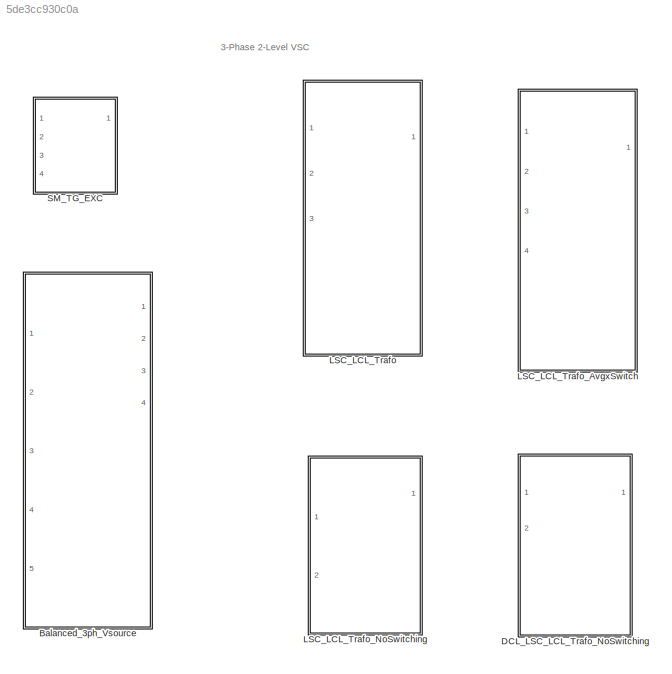
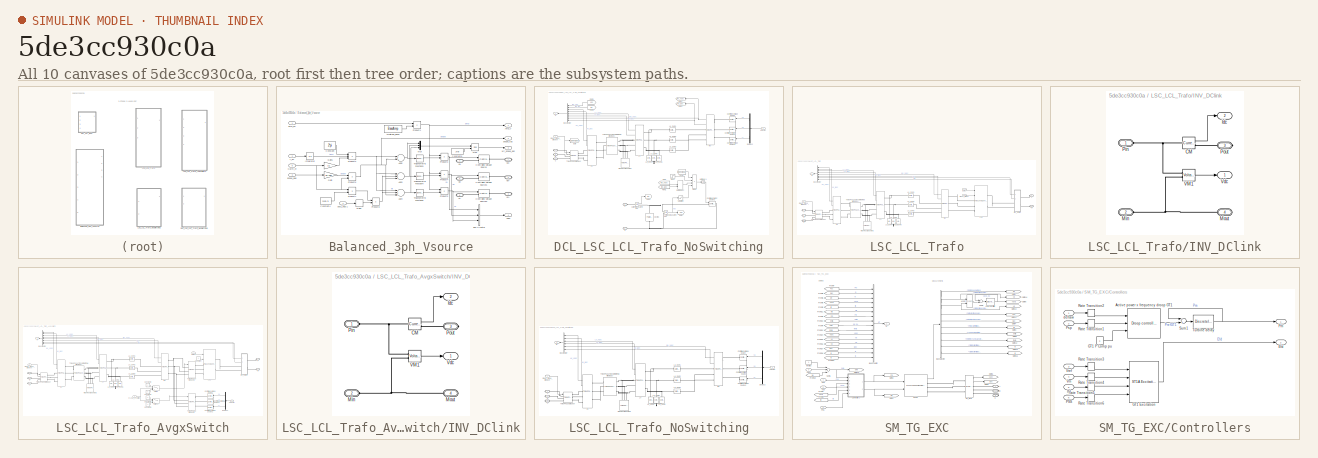
[diagram: thumbnail index - all 10 canvases of the model, root first then tree order]
MODEL slx_5de3cc930c0a
KIND library
CONFIG AbsTol = auto
CONFIG FixedStep = auto
CONFIG MaxStep = auto
CONFIG MinStep = auto
CONFIG RelTol = 1e-3
CONFIG SampleTimeConstraint = Unconstrained
CONFIG Solver = VariableStepAuto
CONFIG SolverMode = SingleTasking
CONFIG SolverName = VariableStepAuto
CONFIG StartTime = 0.0
CONFIG StopTime = 10.0
BLOCK [SubSystem] Balanced_3ph_Vsource
  Ports = [5, 4, 0, 0, 0, 0, 6]
  RequestExecContextInheritance = off
  Variant = off
BLOCK [Sum] Balanced_3ph_Vsource/Add3
  InputSameDT = off
  Inputs = +-+
  OutDataTypeStr = Inherit: Inherit via internal rule
  Ports = [3, 1]
  SaturateOnIntegerOverflow = off
BLOCK [Sum] Balanced_3ph_Vsource/Add4
  InputSameDT = off
  Inputs = +++
  OutDataTypeStr = Inherit: Inherit via internal rule
  Ports = [3, 1]
  SaturateOnIntegerOverflow = off
BLOCK [Sum] Balanced_3ph_Vsource/Add5
  InputSameDT = off
  OutDataTypeStr = Inherit: Inherit via internal rule
  Ports = [2, 1]
  SaturateOnIntegerOverflow = off
BLOCK [Outport] Balanced_3ph_Vsource/Amp_V
  IconDisplay = Port number
BLOCK [Constant] Balanced_3ph_Vsource/Amplitude_Base
  Value = BaseAmp
BLOCK [BusCreator] Balanced_3ph_Vsource/Bus Creator
  DisplayOption = bar
  InheritFromInputs = on
  Inputs = 3
  Ports = [3, 1]
BLOCK [Constant] Balanced_3ph_Vsource/Constant
  Value = 2*pi
BLOCK [Constant] Balanced_3ph_Vsource/Constant4
  Value = 2*pi/3
BLOCK [Constant] Balanced_3ph_Vsource/Constant6
  Value = 2*pi
BLOCK [Reference] Balanced_3ph_Vsource/Controlled Voltage Source  REF=powerlib/Electrical
Sources/Controlled Voltage Source
  Ports = [1, 0, 0, 0, 0, 1, 1]
  SourceBlock = powerlib/Electrical\nSources/Controlled Voltage Source
  SourceType = Controlled Voltage Source
BLOCK [Reference] Balanced_3ph_Vsource/Controlled Voltage Source1  REF=powerlib/Electrical
Sources/Controlled Voltage Source
  Ports = [1, 0, 0, 0, 0, 1, 1]
  SourceBlock = powerlib/Electrical\nSources/Controlled Voltage Source
  SourceType = Controlled Voltage Source
BLOCK [Reference] Balanced_3ph_Vsource/Controlled Voltage Source2  REF=powerlib/Electrical
Sources/Controlled Voltage Source
  Ports = [1, 0, 0, 0, 0, 1, 1]
  SourceBlock = powerlib/Electrical\nSources/Controlled Voltage Source
  SourceType = Controlled Voltage Source
BLOCK [Gain] Balanced_3ph_Vsource/Gain
  Gain = pi/180
  OutDataTypeStr = Inherit: Inherit via internal rule
  ParamDataTypeStr = Inherit: Inherit via internal rule
  SaturateOnIntegerOverflow = off
BLOCK [Gain] Balanced_3ph_Vsource/Gain1
  Gain = fn
  OutDataTypeStr = Inherit: Inherit via internal rule
  ParamDataTypeStr = Inherit: Inherit via internal rule
  SaturateOnIntegerOverflow = off
BLOCK [Inport] Balanced_3ph_Vsource/Harm_nr
  IconDisplay = Port number
  Port = 5
BLOCK [Integrator] Balanced_3ph_Vsource/Integrator
  Ports = [1, 1]
BLOCK [Mux] Balanced_3ph_Vsource/Mux
  DisplayOption = bar
  Inputs = 3
  Ports = [3, 1]
BLOCK [Product] Balanced_3ph_Vsource/Product1
  InputSameDT = off
  OutDataTypeStr = Inherit: Inherit via internal rule
  Ports = [2, 1]
  RndMeth = Floor
  SaturateOnIntegerOverflow = off
BLOCK [Product] Balanced_3ph_Vsource/Product2
  InputSameDT = off
  Inputs = 3
  OutDataTypeStr = Inherit: Inherit via internal rule
  Ports = [3, 1]
  RndMeth = Floor
  SaturateOnIntegerOverflow = off
BLOCK [Product] Balanced_3ph_Vsource/Product3
  InputSameDT = off
  OutDataTypeStr = Inherit: Inherit via internal rule
  Ports = [2, 1]
  RndMeth = Floor
  SaturateOnIntegerOverflow = off
BLOCK [Product] Balanced_3ph_Vsource/Product4
  InputSameDT = off
  OutDataTypeStr = Inherit: Inherit via internal rule
  Ports = [2, 1]
  RndMeth = Floor
  SaturateOnIntegerOverflow = off
BLOCK [Product] Balanced_3ph_Vsource/Product5
  InputSameDT = off
  OutDataTypeStr = Inherit: Inherit via internal rule
  Ports = [2, 1]
  RndMeth = Floor
  SaturateOnIntegerOverflow = off
BLOCK [Product] Balanced_3ph_Vsource/Product6
  InputSameDT = off
  OutDataTypeStr = Inherit: Inherit via internal rule
  Ports = [2, 1]
  RndMeth = Floor
  SaturateOnIntegerOverflow = off
BLOCK [Product] Balanced_3ph_Vsource/Product7
  InputSameDT = off
  OutDataTypeStr = Inherit: Inherit via internal rule
  Ports = [2, 1]
  RndMeth = Floor
  SaturateOnIntegerOverflow = off
BLOCK [Product] Balanced_3ph_Vsource/Product8
  InputSameDT = off
  OutDataTypeStr = Inherit: Inherit via internal rule
  Ports = [2, 1]
  RndMeth = Floor
  SaturateOnIntegerOverflow = off
BLOCK [Relay] Balanced_3ph_Vsource/Relay
  InputProcessing = Elements as channels (sample based)
  OffOutputValue = -1
  OffSwitchValue = -0.1
  OnSwitchValue = 0
BLOCK [Trigonometry] Balanced_3ph_Vsource/Trigonometric Function3
  Ports = [1, 1]
BLOCK [Trigonometry] Balanced_3ph_Vsource/Trigonometric Function4
  Ports = [1, 1]
BLOCK [Trigonometry] Balanced_3ph_Vsource/Trigonometric Function5
  Ports = [1, 1]
BLOCK [PMIOPort] Balanced_3ph_Vsource/Va+
  Port = 1
  Side = Right
BLOCK [PMIOPort] Balanced_3ph_Vsource/Va-
  Port = 4
  Side = Right
BLOCK [Outport] Balanced_3ph_Vsource/Vabc
  IconDisplay = Port number
  Port = 4
BLOCK [PMIOPort] Balanced_3ph_Vsource/Vb+
  Port = 2
  Side = Right
BLOCK [PMIOPort] Balanced_3ph_Vsource/Vb-
  Port = 5
  Side = Right
BLOCK [PMIOPort] Balanced_3ph_Vsource/Vc+
  Port = 3
  Side = Right
BLOCK [PMIOPort] Balanced_3ph_Vsource/Vc-
  Port = 6
  Side = Right
BLOCK [Inport] Balanced_3ph_Vsource/amp_pu
  IconDisplay = Port number
BLOCK [Inport] Balanced_3ph_Vsource/f_pu
  IconDisplay = Port number
  Port = 2
BLOCK [Math] Balanced_3ph_Vsource/mod
  Operator = mod
  Ports = [2, 1]
BLOCK [Inport] Balanced_3ph_Vsource/phase_deg
  IconDisplay = Port number
  Port = 3
BLOCK [Outport] Balanced_3ph_Vsource/phase_rad
  IconDisplay = Port number
  Port = 2
BLOCK [Inport] Balanced_3ph_Vsource/pos1_neg-1
  IconDisplay = Port number
  Port = 4
BLOCK [Outport] Balanced_3ph_Vsource/wt_phase_abc
  IconDisplay = Port number
  Port = 3
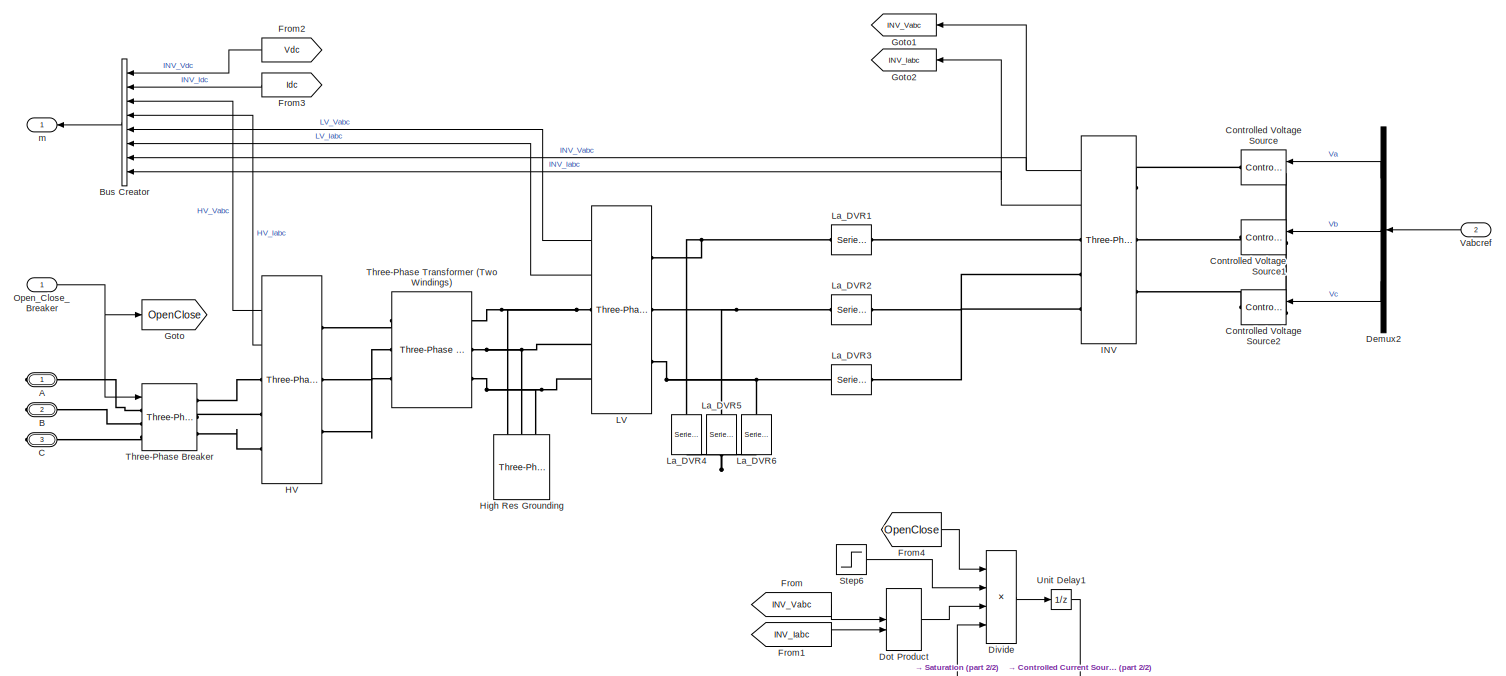
[diagram: DCL_LSC_LCL_Trafo_NoSwitching - part 1/2, full width, middle band]
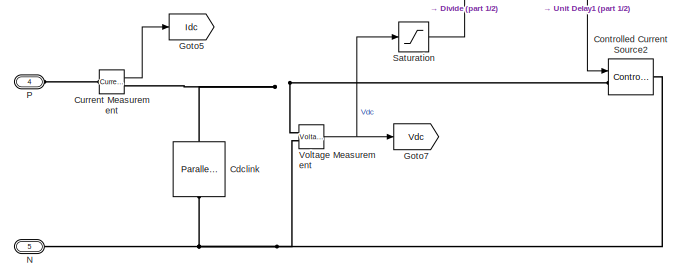
[diagram: DCL_LSC_LCL_Trafo_NoSwitching - part 2/2, bottom center region]
BLOCK [SubSystem] DCL_LSC_LCL_Trafo_NoSwitching
  Ports = [2, 1, 0, 0, 0, 2, 3]
  RequestExecContextInheritance = off
  Variant = off
BLOCK [PMIOPort] DCL_LSC_LCL_Trafo_NoSwitching/A
  Port = 1
  Side = Right
BLOCK [PMIOPort] DCL_LSC_LCL_Trafo_NoSwitching/B
  Port = 2
  Side = Right
BLOCK [BusCreator] DCL_LSC_LCL_Trafo_NoSwitching/Bus Creator
  DisplayOption = bar
  InheritFromInputs = on
  Inputs = 8
  Ports = [8, 1]
BLOCK [PMIOPort] DCL_LSC_LCL_Trafo_NoSwitching/C
  Port = 3
  Side = Right
BLOCK [Reference] DCL_LSC_LCL_Trafo_NoSwitching/Cdclink  REF=powerlib/Elements/Parallel RLC Branch
  AttributesFormatString = \n
  Ports = [0, 0, 0, 0, 0, 1, 1]
  SourceBlock = powerlib/Elements/Parallel RLC Branch
  SourceType = Parallel RLC Branch
BLOCK [Reference] DCL_LSC_LCL_Trafo_NoSwitching/Controlled Current Source2  REF=powerlib/Electrical
Sources/Controlled Current Source
  Ports = [1, 0, 0, 0, 0, 1, 1]
  SourceBlock = powerlib/Electrical\nSources/Controlled Current Source
  SourceType = Controlled Current Source
BLOCK [Reference] DCL_LSC_LCL_Trafo_NoSwitching/Controlled Voltage Source  REF=powerlib/Electrical
Sources/Controlled Voltage Source
  Ports = [1, 0, 0, 0, 0, 1, 1]
  SourceBlock = powerlib/Electrical\nSources/Controlled Voltage Source
  SourceType = Controlled Voltage Source
BLOCK [Reference] DCL_LSC_LCL_Trafo_NoSwitching/Controlled Voltage Source1  REF=powerlib/Electrical
Sources/Controlled Voltage Source
  Ports = [1, 0, 0, 0, 0, 1, 1]
  SourceBlock = powerlib/Electrical\nSources/Controlled Voltage Source
  SourceType = Controlled Voltage Source
BLOCK [Reference] DCL_LSC_LCL_Trafo_NoSwitching/Controlled Voltage Source2  REF=powerlib/Electrical
Sources/Controlled Voltage Source
  Ports = [1, 0, 0, 0, 0, 1, 1]
  SourceBlock = powerlib/Electrical\nSources/Controlled Voltage Source
  SourceType = Controlled Voltage Source
BLOCK [Reference] DCL_LSC_LCL_Trafo_NoSwitching/Current Measurement  REF=powerlib/Measurements/Current Measurement
  Ports = [0, 1, 0, 0, 0, 1, 1]
  SourceBlock = powerlib/Measurements/Current Measurement
  SourceType = Current Measurement
  UserDataPersistent = on
BLOCK [Demux] DCL_LSC_LCL_Trafo_NoSwitching/Demux2
  DisplayOption = bar
  Outputs = 3
  Ports = [1, 3]
BLOCK [Product] DCL_LSC_LCL_Trafo_NoSwitching/Divide
  InputSameDT = off
  Inputs = ***/
  OutDataTypeStr = Inherit: Inherit via internal rule
  Ports = [4, 1]
  RndMeth = Floor
  SaturateOnIntegerOverflow = off
BLOCK [DotProduct] DCL_LSC_LCL_Trafo_NoSwitching/Dot Product
  OutDataTypeStr = Inherit: Inherit via internal rule
BLOCK [From] DCL_LSC_LCL_Trafo_NoSwitching/From
  GotoTag = INV_Vabc
BLOCK [From] DCL_LSC_LCL_Trafo_NoSwitching/From1
  GotoTag = INV_Iabc
BLOCK [From] DCL_LSC_LCL_Trafo_NoSwitching/From2
  GotoTag = Vdc
BLOCK [From] DCL_LSC_LCL_Trafo_NoSwitching/From3
  GotoTag = Idc
BLOCK [From] DCL_LSC_LCL_Trafo_NoSwitching/From4
  GotoTag = OpenClose
BLOCK [Goto] DCL_LSC_LCL_Trafo_NoSwitching/Goto
  GotoTag = OpenClose
BLOCK [Goto] DCL_LSC_LCL_Trafo_NoSwitching/Goto1
  GotoTag = INV_Vabc
BLOCK [Goto] DCL_LSC_LCL_Trafo_NoSwitching/Goto2
  GotoTag = INV_Iabc
BLOCK [Goto] DCL_LSC_LCL_Trafo_NoSwitching/Goto5
  GotoTag = Idc
BLOCK [Goto] DCL_LSC_LCL_Trafo_NoSwitching/Goto7
  GotoTag = Vdc
BLOCK [Reference] DCL_LSC_LCL_Trafo_NoSwitching/HV  REF=powerlib/Measurements/Three-Phase
V-I Measurement
  Ports = [0, 2, 0, 0, 0, 3, 3]
  SourceBlock = powerlib/Measurements/Three-Phase\nV-I Measurement
  SourceType = Three-Phase VI Measurement
BLOCK [Reference] DCL_LSC_LCL_Trafo_NoSwitching/High Res Grounding  REF=powerlib/Elements/Three-Phase
Parallel RLC Load
  AttributesFormatString = \n
  Ports = [0, 0, 0, 0, 0, 3]
  SourceBlock = powerlib/Elements/Three-Phase\nParallel RLC Load
  SourceType = Three-Phase Parallel RLC Load
BLOCK [Reference] DCL_LSC_LCL_Trafo_NoSwitching/INV  REF=powerlib/Measurements/Three-Phase
V-I Measurement
  Ports = [0, 2, 0, 0, 0, 3, 3]
  SourceBlock = powerlib/Measurements/Three-Phase\nV-I Measurement
  SourceType = Three-Phase VI Measurement
BLOCK [Reference] DCL_LSC_LCL_Trafo_NoSwitching/LV  REF=powerlib/Measurements/Three-Phase
V-I Measurement
  Ports = [0, 2, 0, 0, 0, 3, 3]
  SourceBlock = powerlib/Measurements/Three-Phase\nV-I Measurement
  SourceType = Three-Phase VI Measurement
BLOCK [Reference] DCL_LSC_LCL_Trafo_NoSwitching/La_DVR1  REF=powerlib/Elements/Series RLC Branch
  AttributesFormatString = \n
  Ports = [0, 0, 0, 0, 0, 1, 1]
  SourceBlock = powerlib/Elements/Series RLC Branch
  SourceType = Series RLC Branch
BLOCK [Reference] DCL_LSC_LCL_Trafo_NoSwitching/La_DVR2  REF=powerlib/Elements/Series RLC Branch
  AttributesFormatString = \n
  Ports = [0, 0, 0, 0, 0, 1, 1]
  SourceBlock = powerlib/Elements/Series RLC Branch
  SourceType = Series RLC Branch
BLOCK [Reference] DCL_LSC_LCL_Trafo_NoSwitching/La_DVR3  REF=powerlib/Elements/Series RLC Branch
  AttributesFormatString = \n
  Ports = [0, 0, 0, 0, 0, 1, 1]
  SourceBlock = powerlib/Elements/Series RLC Branch
  SourceType = Series RLC Branch
BLOCK [Reference] DCL_LSC_LCL_Trafo_NoSwitching/La_DVR4  REF=powerlib/Elements/Series RLC Branch
  AttributesFormatString = \n
  Ports = [0, 0, 0, 0, 0, 1, 1]
  SourceBlock = powerlib/Elements/Series RLC Branch
  SourceType = Series RLC Branch
BLOCK [Reference] DCL_LSC_LCL_Trafo_NoSwitching/La_DVR5  REF=powerlib/Elements/Series RLC Branch
  AttributesFormatString = \n
  Ports = [0, 0, 0, 0, 0, 1, 1]
  SourceBlock = powerlib/Elements/Series RLC Branch
  SourceType = Series RLC Branch
BLOCK [Reference] DCL_LSC_LCL_Trafo_NoSwitching/La_DVR6  REF=powerlib/Elements/Series RLC Branch
  AttributesFormatString = \n
  Ports = [0, 0, 0, 0, 0, 1, 1]
  SourceBlock = powerlib/Elements/Series RLC Branch
  SourceType = Series RLC Branch
BLOCK [PMIOPort] DCL_LSC_LCL_Trafo_NoSwitching/N
  Port = 5
  Side = Left
BLOCK [Inport] DCL_LSC_LCL_Trafo_NoSwitching/Open_Close_Breaker
  IconDisplay = Port number
BLOCK [PMIOPort] DCL_LSC_LCL_Trafo_NoSwitching/P
  Port = 4
  Side = Left
BLOCK [Saturate] DCL_LSC_LCL_Trafo_NoSwitching/Saturation
  InputPortMap = u0
  LowerLimit = 0.1*Uab*sqrt(2/3)
  Ports = [1, 1]
  UpperLimit = 10*Uab*sqrt(2/3)
BLOCK [Step] DCL_LSC_LCL_Trafo_NoSwitching/Step6
  SampleTime = Tsm
  Time = Tstart
BLOCK [Reference] DCL_LSC_LCL_Trafo_NoSwitching/Three-Phase Breaker  REF=powerlib/Elements/Three-Phase Breaker
  Ports = [1, 0, 0, 0, 0, 3, 3]
  SourceBlock = powerlib/Elements/Three-Phase Breaker
  SourceType = Three-Phase Breaker
BLOCK [Reference] DCL_LSC_LCL_Trafo_NoSwitching/Three-Phase Transformer (Two Windings)  REF=powerlib/Elements/Three-Phase
Transformer
(Two Windings)
  Ports = [0, 0, 0, 0, 0, 3, 3]
  SourceBlock = powerlib/Elements/Three-Phase\nTransformer\n(Two Windings)
  SourceType = Three-Phase Transformer (Two Windings)
BLOCK [UnitDelay] DCL_LSC_LCL_Trafo_NoSwitching/Unit Delay1
  InputProcessing = Elements as channels (sample based)
  SampleTime = Tsm
BLOCK [Inport] DCL_LSC_LCL_Trafo_NoSwitching/Vabcref
  IconDisplay = Port number
  Port = 2
BLOCK [Reference] DCL_LSC_LCL_Trafo_NoSwitching/Voltage Measurement  REF=powerlib/Measurements/Voltage Measurement
  Ports = [0, 1, 0, 0, 0, 2]
  SourceBlock = powerlib/Measurements/Voltage Measurement
  SourceType = Voltage Measurement
  UserDataPersistent = on
BLOCK [Outport] DCL_LSC_LCL_Trafo_NoSwitching/m
  IconDisplay = Port number
BLOCK [SubSystem] LSC_LCL_Trafo
  Ports = [3, 1, 0, 0, 0, 2, 3]
  RequestExecContextInheritance = off
  Variant = off
BLOCK [PMIOPort] LSC_LCL_Trafo/	P
  Port = 1
  Side = Left
BLOCK [PMIOPort] LSC_LCL_Trafo/A
  Port = 3
  Side = Right
BLOCK [PMIOPort] LSC_LCL_Trafo/B
  Port = 4
  Side = Right
BLOCK [Inport] LSC_LCL_Trafo/Block_IGBTs
  IconDisplay = Port number
  Port = 2
BLOCK [BusCreator] LSC_LCL_Trafo/Bus Creator
  DisplayOption = bar
  InheritFromInputs = on
  Inputs = 8
  Ports = [8, 1]
BLOCK [PMIOPort] LSC_LCL_Trafo/C
  Port = 5
  Side = Right
BLOCK [Inport] LSC_LCL_Trafo/Gates
  IconDisplay = Port number
BLOCK [Reference] LSC_LCL_Trafo/HV  REF=powerlib/Measurements/Three-Phase
V-I Measurement
  Ports = [0, 2, 0, 0, 0, 3, 3]
  SourceBlock = powerlib/Measurements/Three-Phase\nV-I Measurement
  SourceType = Three-Phase VI Measurement
BLOCK [Reference] LSC_LCL_Trafo/High Res Grounding  REF=powerlib/Elements/Three-Phase
Parallel RLC Load
  AttributesFormatString = \n
  Ports = [0, 0, 0, 0, 0, 3]
  SourceBlock = powerlib/Elements/Three-Phase\nParallel RLC Load
  SourceType = Three-Phase Parallel RLC Load
BLOCK [Reference] LSC_LCL_Trafo/INV  REF=powerlib/Measurements/Three-Phase
V-I Measurement
  Ports = [0, 2, 0, 0, 0, 3, 3]
  SourceBlock = powerlib/Measurements/Three-Phase\nV-I Measurement
  SourceType = Three-Phase VI Measurement
BLOCK [SubSystem] LSC_LCL_Trafo/INV_DClink
  Ports = [0, 2, 0, 0, 0, 2, 2]
  RequestExecContextInheritance = off
  Variant = off
BLOCK [Reference] LSC_LCL_Trafo/INV_DClink/CM  REF=powerlib/Measurements/Current Measurement
  Ports = [0, 1, 0, 0, 0, 1, 1]
  SourceBlock = powerlib/Measurements/Current Measurement
  SourceType = Current Measurement
  UserDataPersistent = on
BLOCK [Outport] LSC_LCL_Trafo/INV_DClink/Idc
  IconDisplay = Port number
  Port = 2
BLOCK [PMIOPort] LSC_LCL_Trafo/INV_DClink/Min
  Port = 2
  Side = Left
BLOCK [PMIOPort] LSC_LCL_Trafo/INV_DClink/Mout
  Port = 4
  Side = Right
BLOCK [PMIOPort] LSC_LCL_Trafo/INV_DClink/Pin
  Port = 1
  Side = Left
BLOCK [PMIOPort] LSC_LCL_Trafo/INV_DClink/Pout
  Port = 3
  Side = Right
BLOCK [Reference] LSC_LCL_Trafo/INV_DClink/VM1  REF=powerlib/Measurements/Voltage Measurement
  Ports = [0, 1, 0, 0, 0, 2]
  SourceBlock = powerlib/Measurements/Voltage Measurement
  SourceType = Voltage Measurement
  UserDataPersistent = on
BLOCK [Outport] LSC_LCL_Trafo/INV_DClink/Vdc
  IconDisplay = Port number
BLOCK [Reference] LSC_LCL_Trafo/LSC  REF=powerlib/Power
Electronics/Two-Level Converter
  AttributesFormatString = %<ModelType>
  Ports = [2, 0, 0, 0, 0, 3, 2]
  SourceBlock = powerlib/Power\nElectronics/Two-Level Converter
  SourceType = Two-Level Converter
BLOCK [Reference] LSC_LCL_Trafo/LV  REF=powerlib/Measurements/Three-Phase
V-I Measurement
  Ports = [0, 2, 0, 0, 0, 3, 3]
  SourceBlock = powerlib/Measurements/Three-Phase\nV-I Measurement
  SourceType = Three-Phase VI Measurement
BLOCK [Reference] LSC_LCL_Trafo/La_DVR1  REF=powerlib/Elements/Series RLC Branch
  AttributesFormatString = \n
  Ports = [0, 0, 0, 0, 0, 1, 1]
  SourceBlock = powerlib/Elements/Series RLC Branch
  SourceType = Series RLC Branch
BLOCK [Reference] LSC_LCL_Trafo/La_DVR2  REF=powerlib/Elements/Series RLC Branch
  AttributesFormatString = \n
  Ports = [0, 0, 0, 0, 0, 1, 1]
  SourceBlock = powerlib/Elements/Series RLC Branch
  SourceType = Series RLC Branch
BLOCK [Reference] LSC_LCL_Trafo/La_DVR3  REF=powerlib/Elements/Series RLC Branch
  AttributesFormatString = \n
  Ports = [0, 0, 0, 0, 0, 1, 1]
  SourceBlock = powerlib/Elements/Series RLC Branch
  SourceType = Series RLC Branch
BLOCK [Reference] LSC_LCL_Trafo/La_DVR4  REF=powerlib/Elements/Series RLC Branch
  AttributesFormatString = \n
  Ports = [0, 0, 0, 0, 0, 1, 1]
  SourceBlock = powerlib/Elements/Series RLC Branch
  SourceType = Series RLC Branch
BLOCK [Reference] LSC_LCL_Trafo/La_DVR5  REF=powerlib/Elements/Series RLC Branch
  AttributesFormatString = \n
  Ports = [0, 0, 0, 0, 0, 1, 1]
  SourceBlock = powerlib/Elements/Series RLC Branch
  SourceType = Series RLC Branch
BLOCK [Reference] LSC_LCL_Trafo/La_DVR6  REF=powerlib/Elements/Series RLC Branch
  AttributesFormatString = \n
  Ports = [0, 0, 0, 0, 0, 1, 1]
  SourceBlock = powerlib/Elements/Series RLC Branch
  SourceType = Series RLC Branch
BLOCK [PMIOPort] LSC_LCL_Trafo/M
  Port = 2
  Side = Left
BLOCK [Inport] LSC_LCL_Trafo/Open_Close_Breaker
  IconDisplay = Port number
  Port = 3
BLOCK [Reference] LSC_LCL_Trafo/Three-Phase Breaker  REF=powerlib/Elements/Three-Phase Breaker
  Ports = [1, 0, 0, 0, 0, 3, 3]
  SourceBlock = powerlib/Elements/Three-Phase Breaker
  SourceType = Three-Phase Breaker
BLOCK [Reference] LSC_LCL_Trafo/Three-Phase Transformer (Two Windings)  REF=powerlib/Elements/Three-Phase
Transformer
(Two Windings)
  Ports = [0, 0, 0, 0, 0, 3, 3]
  SourceBlock = powerlib/Elements/Three-Phase\nTransformer\n(Two Windings)
  SourceType = Three-Phase Transformer (Two Windings)
BLOCK [Outport] LSC_LCL_Trafo/m
  IconDisplay = Port number
BLOCK [SubSystem] LSC_LCL_Trafo_AvgxSwitch
  Ports = [4, 1, 0, 0, 0, 2, 3]
  RequestExecContextInheritance = off
  Variant = off
BLOCK [PMIOPort] LSC_LCL_Trafo_AvgxSwitch/	P
  Port = 1
  Side = Left
BLOCK [Inport] LSC_LCL_Trafo_AvgxSwitch/0=Avg_1=Switch
  IconDisplay = Port number
  Port = 2
BLOCK [PMIOPort] LSC_LCL_Trafo_AvgxSwitch/A
  Port = 3
  Side = Right
BLOCK [PMIOPort] LSC_LCL_Trafo_AvgxSwitch/B
  Port = 4
  Side = Right
BLOCK [BusCreator] LSC_LCL_Trafo_AvgxSwitch/Bus Creator
  DisplayOption = bar
  InheritFromInputs = on
  Inputs = 8
  Ports = [8, 1]
BLOCK [PMIOPort] LSC_LCL_Trafo_AvgxSwitch/C
  Port = 5
  Side = Right
BLOCK [Constant] LSC_LCL_Trafo_AvgxSwitch/Constant
  Value = 0
BLOCK [Constant] LSC_LCL_Trafo_AvgxSwitch/Constant1
  Value = 0
BLOCK [Constant] LSC_LCL_Trafo_AvgxSwitch/Constant2
BLOCK [Constant] LSC_LCL_Trafo_AvgxSwitch/Constant3
BLOCK [Constant] LSC_LCL_Trafo_AvgxSwitch/Constant4
  Value = 0
BLOCK [Reference] LSC_LCL_Trafo_AvgxSwitch/Controlled Voltage Source  REF=powerlib/Electrical
Sources/Controlled Voltage Source
  Ports = [1, 0, 0, 0, 0, 1, 1]
  SourceBlock = powerlib/Electrical\nSources/Controlled Voltage Source
  SourceType = Controlled Voltage Source
BLOCK [Reference] LSC_LCL_Trafo_AvgxSwitch/Controlled Voltage Source1  REF=powerlib/Electrical
Sources/Controlled Voltage Source
  Ports = [1, 0, 0, 0, 0, 1, 1]
  SourceBlock = powerlib/Electrical\nSources/Controlled Voltage Source
  SourceType = Controlled Voltage Source
BLOCK [Reference] LSC_LCL_Trafo_AvgxSwitch/Controlled Voltage Source2  REF=powerlib/Electrical
Sources/Controlled Voltage Source
  Ports = [1, 0, 0, 0, 0, 1, 1]
  SourceBlock = powerlib/Electrical\nSources/Controlled Voltage Source
  SourceType = Controlled Voltage Source
BLOCK [Demux] LSC_LCL_Trafo_AvgxSwitch/Demux2
  DisplayOption = bar
  Outputs = 3
  Ports = [1, 3]
BLOCK [Inport] LSC_LCL_Trafo_AvgxSwitch/Gates
  IconDisplay = Port number
BLOCK [Reference] LSC_LCL_Trafo_AvgxSwitch/HV  REF=powerlib/Measurements/Three-Phase
V-I Measurement
  Ports = [0, 2, 0, 0, 0, 3, 3]
  SourceBlock = powerlib/Measurements/Three-Phase\nV-I Measurement
  SourceType = Three-Phase VI Measurement
BLOCK [Reference] LSC_LCL_Trafo_AvgxSwitch/High Res Grounding  REF=powerlib/Elements/Three-Phase
Parallel RLC Load
  AttributesFormatString = \n
  Ports = [0, 0, 0, 0, 0, 3]
  SourceBlock = powerlib/Elements/Three-Phase\nParallel RLC Load
  SourceType = Three-Phase Parallel RLC Load
BLOCK [Reference] LSC_LCL_Trafo_AvgxSwitch/INV  REF=powerlib/Measurements/Three-Phase
V-I Measurement
  Ports = [0, 2, 0, 0, 0, 3, 3]
  SourceBlock = powerlib/Measurements/Three-Phase\nV-I Measurement
  SourceType = Three-Phase VI Measurement
BLOCK [SubSystem] LSC_LCL_Trafo_AvgxSwitch/INV_DClink
  Ports = [0, 2, 0, 0, 0, 2, 2]
  RequestExecContextInheritance = off
  Variant = off
BLOCK [Reference] LSC_LCL_Trafo_AvgxSwitch/INV_DClink/CM  REF=powerlib/Measurements/Current Measurement
  Ports = [0, 1, 0, 0, 0, 1, 1]
  SourceBlock = powerlib/Measurements/Current Measurement
  SourceType = Current Measurement
  UserDataPersistent = on
BLOCK [Outport] LSC_LCL_Trafo_AvgxSwitch/INV_DClink/Idc
  IconDisplay = Port number
  Port = 2
BLOCK [PMIOPort] LSC_LCL_Trafo_AvgxSwitch/INV_DClink/Min
  Port = 2
  Side = Left
BLOCK [PMIOPort] LSC_LCL_Trafo_AvgxSwitch/INV_DClink/Mout
  Port = 4
  Side = Right
BLOCK [PMIOPort] LSC_LCL_Trafo_AvgxSwitch/INV_DClink/Pin
  Port = 1
  Side = Left
BLOCK [PMIOPort] LSC_LCL_Trafo_AvgxSwitch/INV_DClink/Pout
  Port = 3
  Side = Right
BLOCK [Reference] LSC_LCL_Trafo_AvgxSwitch/INV_DClink/VM1  REF=powerlib/Measurements/Voltage Measurement
  Ports = [0, 1, 0, 0, 0, 2]
  SourceBlock = powerlib/Measurements/Voltage Measurement
  SourceType = Voltage Measurement
  UserDataPersistent = on
BLOCK [Outport] LSC_LCL_Trafo_AvgxSwitch/INV_DClink/Vdc
  IconDisplay = Port number
BLOCK [Reference] LSC_LCL_Trafo_AvgxSwitch/LSC  REF=powerlib/Power
Electronics/Two-Level Converter
  AttributesFormatString = %<ModelType>
  Ports = [2, 0, 0, 0, 0, 3, 2]
  SourceBlock = powerlib/Power\nElectronics/Two-Level Converter
  SourceType = Two-Level Converter
BLOCK [Reference] LSC_LCL_Trafo_AvgxSwitch/LV  REF=powerlib/Measurements/Three-Phase
V-I Measurement
  Ports = [0, 2, 0, 0, 0, 3, 3]
  SourceBlock = powerlib/Measurements/Three-Phase\nV-I Measurement
  SourceType = Three-Phase VI Measurement
BLOCK [Reference] LSC_LCL_Trafo_AvgxSwitch/La_DVR1  REF=powerlib/Elements/Series RLC Branch
  AttributesFormatString = \n
  Ports = [0, 0, 0, 0, 0, 1, 1]
  SourceBlock = powerlib/Elements/Series RLC Branch
  SourceType = Series RLC Branch
BLOCK [Reference] LSC_LCL_Trafo_AvgxSwitch/La_DVR2  REF=powerlib/Elements/Series RLC Branch
  AttributesFormatString = \n
  Ports = [0, 0, 0, 0, 0, 1, 1]
  SourceBlock = powerlib/Elements/Series RLC Branch
  SourceType = Series RLC Branch
BLOCK [Reference] LSC_LCL_Trafo_AvgxSwitch/La_DVR3  REF=powerlib/Elements/Series RLC Branch
  AttributesFormatString = \n
  Ports = [0, 0, 0, 0, 0, 1, 1]
  SourceBlock = powerlib/Elements/Series RLC Branch
  SourceType = Series RLC Branch
BLOCK [Reference] LSC_LCL_Trafo_AvgxSwitch/La_DVR4  REF=powerlib/Elements/Series RLC Branch
  AttributesFormatString = \n
  Ports = [0, 0, 0, 0, 0, 1, 1]
  SourceBlock = powerlib/Elements/Series RLC Branch
  SourceType = Series RLC Branch
BLOCK [Reference] LSC_LCL_Trafo_AvgxSwitch/La_DVR5  REF=powerlib/Elements/Series RLC Branch
  AttributesFormatString = \n
  Ports = [0, 0, 0, 0, 0, 1, 1]
  SourceBlock = powerlib/Elements/Series RLC Branch
  SourceType = Series RLC Branch
BLOCK [Reference] LSC_LCL_Trafo_AvgxSwitch/La_DVR6  REF=powerlib/Elements/Series RLC Branch
  AttributesFormatString = \n
  Ports = [0, 0, 0, 0, 0, 1, 1]
  SourceBlock = powerlib/Elements/Series RLC Branch
  SourceType = Series RLC Branch
BLOCK [PMIOPort] LSC_LCL_Trafo_AvgxSwitch/M
  Port = 2
  Side = Left
BLOCK [Inport] LSC_LCL_Trafo_AvgxSwitch/Open_Close_Breaker
  IconDisplay = Port number
  Port = 3
BLOCK [Switch] LSC_LCL_Trafo_AvgxSwitch/Switch
  Criteria = u2 > Threshold
  InputSameDT = off
  SaturateOnIntegerOverflow = off
  Threshold = 0.5
BLOCK [Switch] LSC_LCL_Trafo_AvgxSwitch/Switch1
  Criteria = u2 > Threshold
  InputSameDT = off
  SaturateOnIntegerOverflow = off
  Threshold = 0.5
BLOCK [Reference] LSC_LCL_Trafo_AvgxSwitch/Three-Phase Breaker  REF=powerlib/Elements/Three-Phase Breaker
  Ports = [1, 0, 0, 0, 0, 3, 3]
  SourceBlock = powerlib/Elements/Three-Phase Breaker
  SourceType = Three-Phase Breaker
BLOCK [Reference] LSC_LCL_Trafo_AvgxSwitch/Three-Phase Breaker1  REF=powerlib/Elements/Three-Phase Breaker
  Ports = [1, 0, 0, 0, 0, 3, 3]
  SourceBlock = powerlib/Elements/Three-Phase Breaker
  SourceType = Three-Phase Breaker
BLOCK [Reference] LSC_LCL_Trafo_AvgxSwitch/Three-Phase Breaker2  REF=powerlib/Elements/Three-Phase Breaker
  Ports = [1, 0, 0, 0, 0, 3, 3]
  SourceBlock = powerlib/Elements/Three-Phase Breaker
  SourceType = Three-Phase Breaker
BLOCK [Reference] LSC_LCL_Trafo_AvgxSwitch/Three-Phase Transformer (Two Windings)  REF=powerlib/Elements/Three-Phase
Transformer
(Two Windings)
  Ports = [0, 0, 0, 0, 0, 3, 3]
  SourceBlock = powerlib/Elements/Three-Phase\nTransformer\n(Two Windings)
  SourceType = Three-Phase Transformer (Two Windings)
BLOCK [Inport] LSC_LCL_Trafo_AvgxSwitch/Vabcref
  IconDisplay = Port number
  Port = 4
BLOCK [Outport] LSC_LCL_Trafo_AvgxSwitch/m
  IconDisplay = Port number
BLOCK [SubSystem] LSC_LCL_Trafo_NoSwitching
  Ports = [2, 1, 0, 0, 0, 0, 3]
  RequestExecContextInheritance = off
  Variant = off
BLOCK [PMIOPort] LSC_LCL_Trafo_NoSwitching/A
  Port = 1
  Side = Right
BLOCK [PMIOPort] LSC_LCL_Trafo_NoSwitching/B
  Port = 2
  Side = Right
BLOCK [BusCreator] LSC_LCL_Trafo_NoSwitching/Bus Creator
  DisplayOption = bar
  InheritFromInputs = on
  Inputs = 6
  Ports = [6, 1]
BLOCK [PMIOPort] LSC_LCL_Trafo_NoSwitching/C
  Port = 3
  Side = Right
BLOCK [Reference] LSC_LCL_Trafo_NoSwitching/Controlled Voltage Source  REF=powerlib/Electrical
Sources/Controlled Voltage Source
  Ports = [1, 0, 0, 0, 0, 1, 1]
  SourceBlock = powerlib/Electrical\nSources/Controlled Voltage Source
  SourceType = Controlled Voltage Source
BLOCK [Reference] LSC_LCL_Trafo_NoSwitching/Controlled Voltage Source1  REF=powerlib/Electrical
Sources/Controlled Voltage Source
  Ports = [1, 0, 0, 0, 0, 1, 1]
  SourceBlock = powerlib/Electrical\nSources/Controlled Voltage Source
  SourceType = Controlled Voltage Source
BLOCK [Reference] LSC_LCL_Trafo_NoSwitching/Controlled Voltage Source2  REF=powerlib/Electrical
Sources/Controlled Voltage Source
  Ports = [1, 0, 0, 0, 0, 1, 1]
  SourceBlock = powerlib/Electrical\nSources/Controlled Voltage Source
  SourceType = Controlled Voltage Source
BLOCK [Demux] LSC_LCL_Trafo_NoSwitching/Demux2
  DisplayOption = bar
  Outputs = 3
  Ports = [1, 3]
BLOCK [Reference] LSC_LCL_Trafo_NoSwitching/HV  REF=powerlib/Measurements/Three-Phase
V-I Measurement
  Ports = [0, 2, 0, 0, 0, 3, 3]
  SourceBlock = powerlib/Measurements/Three-Phase\nV-I Measurement
  SourceType = Three-Phase VI Measurement
BLOCK [Reference] LSC_LCL_Trafo_NoSwitching/High Res Grounding  REF=powerlib/Elements/Three-Phase
Parallel RLC Load
  AttributesFormatString = \n
  Ports = [0, 0, 0, 0, 0, 3]
  SourceBlock = powerlib/Elements/Three-Phase\nParallel RLC Load
  SourceType = Three-Phase Parallel RLC Load
BLOCK [Reference] LSC_LCL_Trafo_NoSwitching/INV  REF=powerlib/Measurements/Three-Phase
V-I Measurement
  Ports = [0, 2, 0, 0, 0, 3, 3]
  SourceBlock = powerlib/Measurements/Three-Phase\nV-I Measurement
  SourceType = Three-Phase VI Measurement
BLOCK [Reference] LSC_LCL_Trafo_NoSwitching/LV  REF=powerlib/Measurements/Three-Phase
V-I Measurement
  Ports = [0, 2, 0, 0, 0, 3, 3]
  SourceBlock = powerlib/Measurements/Three-Phase\nV-I Measurement
  SourceType = Three-Phase VI Measurement
BLOCK [Reference] LSC_LCL_Trafo_NoSwitching/La_DVR1  REF=powerlib/Elements/Series RLC Branch
  AttributesFormatString = \n
  Ports = [0, 0, 0, 0, 0, 1, 1]
  SourceBlock = powerlib/Elements/Series RLC Branch
  SourceType = Series RLC Branch
BLOCK [Reference] LSC_LCL_Trafo_NoSwitching/La_DVR2  REF=powerlib/Elements/Series RLC Branch
  AttributesFormatString = \n
  Ports = [0, 0, 0, 0, 0, 1, 1]
  SourceBlock = powerlib/Elements/Series RLC Branch
  SourceType = Series RLC Branch
BLOCK [Reference] LSC_LCL_Trafo_NoSwitching/La_DVR3  REF=powerlib/Elements/Series RLC Branch
  AttributesFormatString = \n
  Ports = [0, 0, 0, 0, 0, 1, 1]
  SourceBlock = powerlib/Elements/Series RLC Branch
  SourceType = Series RLC Branch
BLOCK [Reference] LSC_LCL_Trafo_NoSwitching/La_DVR4  REF=powerlib/Elements/Series RLC Branch
  AttributesFormatString = \n
  Ports = [0, 0, 0, 0, 0, 1, 1]
  SourceBlock = powerlib/Elements/Series RLC Branch
  SourceType = Series RLC Branch
BLOCK [Reference] LSC_LCL_Trafo_NoSwitching/La_DVR5  REF=powerlib/Elements/Series RLC Branch
  AttributesFormatString = \n
  Ports = [0, 0, 0, 0, 0, 1, 1]
  SourceBlock = powerlib/Elements/Series RLC Branch
  SourceType = Series RLC Branch
BLOCK [Reference] LSC_LCL_Trafo_NoSwitching/La_DVR6  REF=powerlib/Elements/Series RLC Branch
  AttributesFormatString = \n
  Ports = [0, 0, 0, 0, 0, 1, 1]
  SourceBlock = powerlib/Elements/Series RLC Branch
  SourceType = Series RLC Branch
BLOCK [Inport] LSC_LCL_Trafo_NoSwitching/Open_Close_Breaker
  IconDisplay = Port number
BLOCK [Reference] LSC_LCL_Trafo_NoSwitching/Three-Phase Breaker  REF=powerlib/Elements/Three-Phase Breaker
  Ports = [1, 0, 0, 0, 0, 3, 3]
  SourceBlock = powerlib/Elements/Three-Phase Breaker
  SourceType = Three-Phase Breaker
BLOCK [Reference] LSC_LCL_Trafo_NoSwitching/Three-Phase Transformer (Two Windings)  REF=powerlib/Elements/Three-Phase
Transformer
(Two Windings)
  Ports = [0, 0, 0, 0, 0, 3, 3]
  SourceBlock = powerlib/Elements/Three-Phase\nTransformer\n(Two Windings)
  SourceType = Three-Phase Transformer (Two Windings)
BLOCK [Inport] LSC_LCL_Trafo_NoSwitching/Vabcref
  IconDisplay = Port number
  Port = 2
BLOCK [Outport] LSC_LCL_Trafo_NoSwitching/m
  IconDisplay = Port number
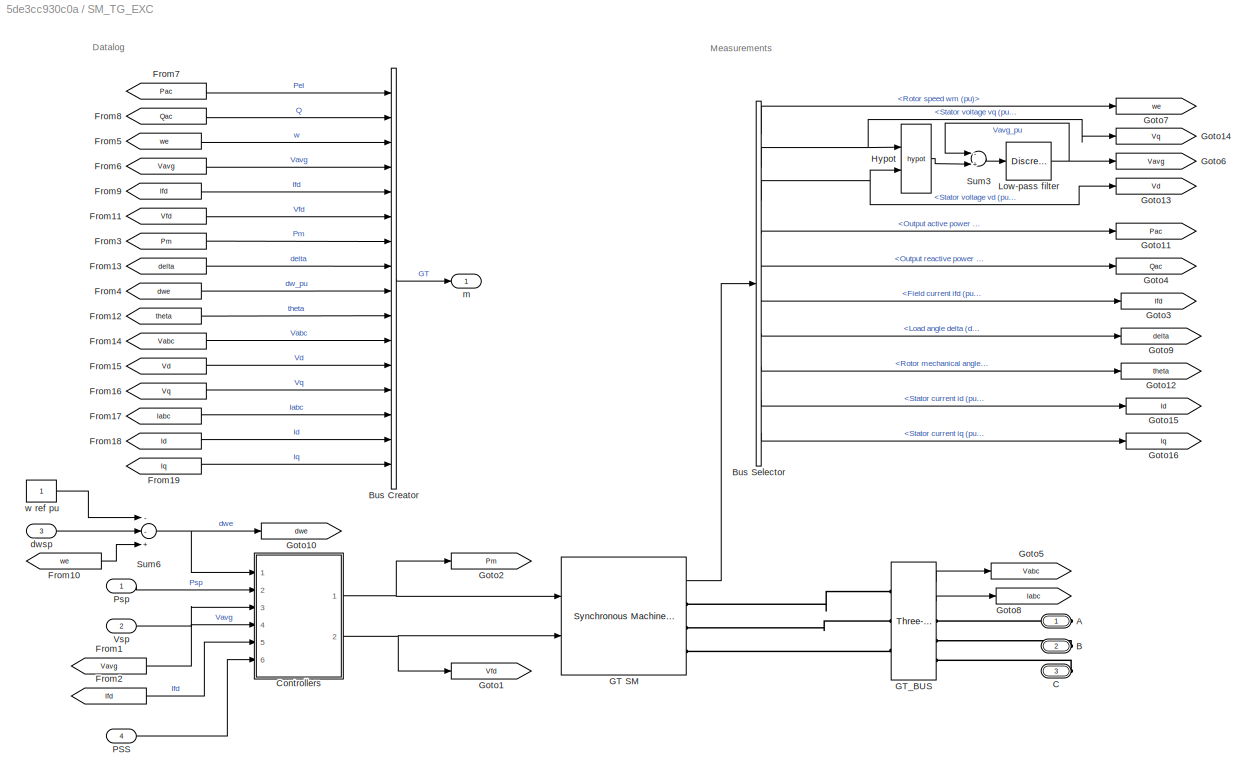
BLOCK [SubSystem] SM_TG_EXC
  Ports = [4, 1, 0, 0, 0, 0, 3]
  RequestExecContextInheritance = off
  SystemSampleTime = 10*sim.tStep
  Variant = off
BLOCK [PMIOPort] SM_TG_EXC/A
  Port = 1
  Side = Right
BLOCK [PMIOPort] SM_TG_EXC/B
  Port = 2
  Side = Right
BLOCK [BusCreator] SM_TG_EXC/Bus Creator
  DisplayOption = bar
  InheritFromInputs = on
  Inputs = 16
  Ports = [16, 1]
BLOCK [BusSelector] SM_TG_EXC/Bus Selector
  OutputSignals = Mechanical.Rotor speed  wm  (pu),dq0 components.Stator voltage  vq (pu),dq0 components.Stator voltage  vd (pu),Output active power   Peo (pu),Output reactive power  Qeo (pu),dq0 components.Field current  ifd (pu),Load angle   delta  (deg),Mechanical.Rotor mechanical angle  theta (deg),dq0 components.Stator current  id (pu),dq0 components.Stator current  iq (pu)
  Ports = [1, 10]
BLOCK [PMIOPort] SM_TG_EXC/C
  Port = 3
  Side = Right
BLOCK [SubSystem] SM_TG_EXC/Controllers
  Ports = [6, 2]
  RequestExecContextInheritance = off
  SystemSampleTime = 1/(20*grid.fn)
  Variant = off
BLOCK [Reference] SM_TG_EXC/Controllers/Active power x frequency droop GT1  REF=pwrsysBasic/Droop controller
  Ports = [3, 1]
  SourceBlock = pwrsysBasic/Droop controller
  SourceType = Droop controller
BLOCK [Outport] SM_TG_EXC/Controllers/Efd
  IconDisplay = Port number
  Port = 2
BLOCK [Reference] SM_TG_EXC/Controllers/GT1 Excitation  REF=sps_avr/ST1A
Excitation System
  Ports = [4, 1]
  SourceBlock = sps_avr/ST1A\nExcitation System
  SourceType = ST1A Excitation System
BLOCK [Constant] SM_TG_EXC/Controllers/GT1 P Comp pu
  SampleTime = -1
BLOCK [Inport] SM_TG_EXC/Controllers/Ifd
  IconDisplay = Port number
  Port = 5
BLOCK [Inport] SM_TG_EXC/Controllers/PSS
  IconDisplay = Port number
  Port = 6
BLOCK [Outport] SM_TG_EXC/Controllers/Pm
  IconDisplay = Port number
BLOCK [Inport] SM_TG_EXC/Controllers/Psp
  IconDisplay = Port number
  Port = 2
BLOCK [RateTransition] SM_TG_EXC/Controllers/Rate Transition1
  OutPortSampleTime = Ts
BLOCK [RateTransition] SM_TG_EXC/Controllers/Rate Transition2
  OutPortSampleTime = Ts
BLOCK [RateTransition] SM_TG_EXC/Controllers/Rate Transition3
  OutPortSampleTime = Ts
BLOCK [RateTransition] SM_TG_EXC/Controllers/Rate Transition4
  OutPortSampleTime = Ts
BLOCK [RateTransition] SM_TG_EXC/Controllers/Rate Transition5
  OutPortSampleTime = Ts
BLOCK [RateTransition] SM_TG_EXC/Controllers/Rate Transition6
  OutPortSampleTime = Ts
BLOCK [Sum] SM_TG_EXC/Controllers/Sum1
  InputSameDT = off
  Inputs = -+
  OutDataTypeStr = Inherit: Inherit via internal rule
  Ports = [2, 1]
  SaturateOnIntegerOverflow = off
BLOCK [DiscreteIntegrator] SM_TG_EXC/Controllers/Turbine delay
  ICPrevOutput = DiscIntNeverNeededParam
  ICPrevScaledInput = DiscIntNeverNeededParam
  InitialCondition = TurbP0
  InitialConditionSetting = State (most efficient)
  LimitOutput = on
  LowerSaturationLimit = 0
  Ports = [1, 1]
  SampleTime = Ts
  UpperSaturationLimit = SMcosphi
  gainval = 1/TurbT
BLOCK [Inport] SM_TG_EXC/Controllers/Vm
  IconDisplay = Port number
  Port = 4
BLOCK [Inport] SM_TG_EXC/Controllers/Vref
  IconDisplay = Port number
  Port = 3
BLOCK [Inport] SM_TG_EXC/Controllers/deltaw
  IconDisplay = Port number
BLOCK [From] SM_TG_EXC/From1
  GotoTag = Vavg
BLOCK [From] SM_TG_EXC/From10
  GotoTag = we
BLOCK [From] SM_TG_EXC/From11
  GotoTag = Vfd
BLOCK [From] SM_TG_EXC/From12
  GotoTag = theta
BLOCK [From] SM_TG_EXC/From13
  GotoTag = delta
BLOCK [From] SM_TG_EXC/From14
  GotoTag = Vabc
BLOCK [From] SM_TG_EXC/From15
  GotoTag = Vd
BLOCK [From] SM_TG_EXC/From16
  GotoTag = Vq
BLOCK [From] SM_TG_EXC/From17
  GotoTag = Iabc
BLOCK [From] SM_TG_EXC/From18
  GotoTag = Id
BLOCK [From] SM_TG_EXC/From19
  GotoTag = Iq
BLOCK [From] SM_TG_EXC/From2
  GotoTag = Ifd
BLOCK [From] SM_TG_EXC/From3
  GotoTag = Pm
BLOCK [From] SM_TG_EXC/From4
  GotoTag = dwe
BLOCK [From] SM_TG_EXC/From5
  GotoTag = we
BLOCK [From] SM_TG_EXC/From6
  GotoTag = Vavg
BLOCK [From] SM_TG_EXC/From7
  GotoTag = Pac
BLOCK [From] SM_TG_EXC/From8
  GotoTag = Qac
BLOCK [From] SM_TG_EXC/From9
  GotoTag = Ifd
BLOCK [Reference] SM_TG_EXC/GT SM  REF=powerlib/Machines/Synchronous Machine
pu Standard
  Ports = [2, 1, 0, 0, 0, 0, 3]
  SourceBlock = powerlib/Machines/Synchronous Machine\npu Standard
  SourceType = Synchronous Machine
BLOCK [Reference] SM_TG_EXC/GT_BUS  REF=powerlib/Measurements/Three-Phase
V-I Measurement
  Ports = [0, 2, 0, 0, 0, 3, 3]
  SourceBlock = powerlib/Measurements/Three-Phase\nV-I Measurement
  SourceType = Three-Phase VI Measurement
BLOCK [Goto] SM_TG_EXC/Goto1
  GotoTag = Vfd
BLOCK [Goto] SM_TG_EXC/Goto10
  GotoTag = dwe
BLOCK [Goto] SM_TG_EXC/Goto11
  GotoTag = Pac
BLOCK [Goto] SM_TG_EXC/Goto12
  GotoTag = theta
BLOCK [Goto] SM_TG_EXC/Goto13
  GotoTag = Vd
BLOCK [Goto] SM_TG_EXC/Goto14
  GotoTag = Vq
BLOCK [Goto] SM_TG_EXC/Goto15
  GotoTag = Id
BLOCK [Goto] SM_TG_EXC/Goto16
  GotoTag = Iq
BLOCK [Goto] SM_TG_EXC/Goto2
  GotoTag = Pm
BLOCK [Goto] SM_TG_EXC/Goto3
  GotoTag = Ifd
BLOCK [Goto] SM_TG_EXC/Goto4
  GotoTag = Qac
BLOCK [Goto] SM_TG_EXC/Goto5
  GotoTag = Vabc
BLOCK [Goto] SM_TG_EXC/Goto6
  GotoTag = Vavg
BLOCK [Goto] SM_TG_EXC/Goto7
  GotoTag = we
BLOCK [Goto] SM_TG_EXC/Goto8
  GotoTag = Iabc
BLOCK [Goto] SM_TG_EXC/Goto9
  GotoTag = delta
BLOCK [Math] SM_TG_EXC/Hypot
  Operator = hypot
  Ports = [2, 1]
BLOCK [DiscreteIntegrator] SM_TG_EXC/Low-pass filter
  ICPrevOutput = DiscIntNeverNeededParam
  ICPrevScaledInput = DiscIntNeverNeededParam
  InitialCondition = SMVt0
  InitialConditionSetting = State (most efficient)
  LowerSaturationLimit = Refmin/Kp
  Ports = [1, 1]
  SampleTime = Ts
  UpperSaturationLimit = Refmax/Kp
  gainval = 3/ExcTr
BLOCK [Inport] SM_TG_EXC/PSS
  IconDisplay = Port number
  Port = 4
BLOCK [Inport] SM_TG_EXC/Psp
  IconDisplay = Port number
BLOCK [Sum] SM_TG_EXC/Sum3
  InputSameDT = off
  Inputs = -+
  OutDataTypeStr = Inherit: Inherit via internal rule
  Ports = [2, 1]
  SaturateOnIntegerOverflow = off
BLOCK [Sum] SM_TG_EXC/Sum6
  InputSameDT = off
  Inputs = --+
  OutDataTypeStr = Inherit: Inherit via internal rule
  Ports = [3, 1]
  SaturateOnIntegerOverflow = off
BLOCK [Inport] SM_TG_EXC/Vsp
  IconDisplay = Port number
  Port = 2
BLOCK [Inport] SM_TG_EXC/dwsp
  IconDisplay = Port number
  Port = 3
BLOCK [Outport] SM_TG_EXC/m
  IconDisplay = Port number
BLOCK [Constant] SM_TG_EXC/w ref pu
  SampleTime = Ts
ANNOTATION (root): 3-Phase 2-Level VSC
ANNOTATION SM_TG_EXC: Datalog
ANNOTATION SM_TG_EXC: Measurements
NET Balanced_3ph_Vsource/Add3:1 -> Balanced_3ph_Vsource/Mux:2, Balanced_3ph_Vsource/Trigonometric Function4:1
NET Balanced_3ph_Vsource/Add4:1 -> Balanced_3ph_Vsource/Mux:3, Balanced_3ph_Vsource/Trigonometric Function5:1
NET Balanced_3ph_Vsource/Add5:1 -> Balanced_3ph_Vsource/Mux:1, Balanced_3ph_Vsource/Trigonometric Function3:1
LINE Balanced_3ph_Vsource/Amplitude_Base:1 -> Balanced_3ph_Vsource/Product1:2
LINE Balanced_3ph_Vsource/Bus Creator:1 -> Balanced_3ph_Vsource/Vabc:1
LINE Balanced_3ph_Vsource/Constant4:1 -> Balanced_3ph_Vsource/Product7:2
LINE Balanced_3ph_Vsource/Constant6:1 -> Balanced_3ph_Vsource/mod:2
LINE Balanced_3ph_Vsource/Constant:1 -> Balanced_3ph_Vsource/Product2:1
LINE Balanced_3ph_Vsource/Gain1:1 -> Balanced_3ph_Vsource/Product2:3
LINE Balanced_3ph_Vsource/Gain:1 -> Balanced_3ph_Vsource/Product6:1
NET Balanced_3ph_Vsource/Harm_nr:1 -> Balanced_3ph_Vsource/Gain1:1, Balanced_3ph_Vsource/Product6:2, Balanced_3ph_Vsource/Product7:1
LINE Balanced_3ph_Vsource/Integrator:1 -> Balanced_3ph_Vsource/Product2:2
LINE Balanced_3ph_Vsource/Mux:1 -> Balanced_3ph_Vsource/mod:1
NET Balanced_3ph_Vsource/Product1:1 -> Balanced_3ph_Vsource/Amp_V:1, Balanced_3ph_Vsource/Product3:1, Balanced_3ph_Vsource/Product4:1, Balanced_3ph_Vsource/Product5:1
NET Balanced_3ph_Vsource/Product2:1 -> Balanced_3ph_Vsource/Add3:1, Balanced_3ph_Vsource/Add4:1, Balanced_3ph_Vsource/Add5:1
NET Balanced_3ph_Vsource/Product3:1 -> Balanced_3ph_Vsource/Bus Creator:1, Balanced_3ph_Vsource/Controlled Voltage Source:1
NET Balanced_3ph_Vsource/Product4:1 -> Balanced_3ph_Vsource/Bus Creator:2, Balanced_3ph_Vsource/Controlled Voltage Source1:1
NET Balanced_3ph_Vsource/Product5:1 -> Balanced_3ph_Vsource/Bus Creator:3, Balanced_3ph_Vsource/Controlled Voltage Source2:1
NET Balanced_3ph_Vsource/Product6:1 -> Balanced_3ph_Vsource/Add3:3, Balanced_3ph_Vsource/Add4:3, Balanced_3ph_Vsource/Add5:2, Balanced_3ph_Vsource/phase_rad:1
LINE Balanced_3ph_Vsource/Product7:1 -> Balanced_3ph_Vsource/Product8:1
NET Balanced_3ph_Vsource/Product8:1 -> Balanced_3ph_Vsource/Add3:2, Balanced_3ph_Vsource/Add4:2
LINE Balanced_3ph_Vsource/Relay:1 -> Balanced_3ph_Vsource/Product8:2
LINE Balanced_3ph_Vsource/Trigonometric Function3:1 -> Balanced_3ph_Vsource/Product3:2
LINE Balanced_3ph_Vsource/Trigonometric Function4:1 -> Balanced_3ph_Vsource/Product4:2
LINE Balanced_3ph_Vsource/Trigonometric Function5:1 -> Balanced_3ph_Vsource/Product5:2
LINE Balanced_3ph_Vsource/amp_pu:1 -> Balanced_3ph_Vsource/Product1:1
LINE Balanced_3ph_Vsource/f_pu:1 -> Balanced_3ph_Vsource/Integrator:1
LINE Balanced_3ph_Vsource/mod:1 -> Balanced_3ph_Vsource/wt_phase_abc:1
LINE Balanced_3ph_Vsource/phase_deg:1 -> Balanced_3ph_Vsource/Gain:1
LINE Balanced_3ph_Vsource/pos1_neg-1:1 -> Balanced_3ph_Vsource/Relay:1
LINE DCL_LSC_LCL_Trafo_NoSwitching/Bus Creator:1 -> DCL_LSC_LCL_Trafo_NoSwitching/m:1
LINE DCL_LSC_LCL_Trafo_NoSwitching/Current Measurement:1 -> DCL_LSC_LCL_Trafo_NoSwitching/Goto5:1
LINE DCL_LSC_LCL_Trafo_NoSwitching/Demux2:1 -> DCL_LSC_LCL_Trafo_NoSwitching/Controlled Voltage Source:1
LINE DCL_LSC_LCL_Trafo_NoSwitching/Demux2:2 -> DCL_LSC_LCL_Trafo_NoSwitching/Controlled Voltage Source1:1
LINE DCL_LSC_LCL_Trafo_NoSwitching/Demux2:3 -> DCL_LSC_LCL_Trafo_NoSwitching/Controlled Voltage Source2:1
LINE DCL_LSC_LCL_Trafo_NoSwitching/Divide:1 -> DCL_LSC_LCL_Trafo_NoSwitching/Unit Delay1:1
LINE DCL_LSC_LCL_Trafo_NoSwitching/Dot Product:1 -> DCL_LSC_LCL_Trafo_NoSwitching/Divide:3
LINE DCL_LSC_LCL_Trafo_NoSwitching/From1:1 -> DCL_LSC_LCL_Trafo_NoSwitching/Dot Product:2
LINE DCL_LSC_LCL_Trafo_NoSwitching/From2:1 -> DCL_LSC_LCL_Trafo_NoSwitching/Bus Creator:1
LINE DCL_LSC_LCL_Trafo_NoSwitching/From3:1 -> DCL_LSC_LCL_Trafo_NoSwitching/Bus Creator:2
LINE DCL_LSC_LCL_Trafo_NoSwitching/From4:1 -> DCL_LSC_LCL_Trafo_NoSwitching/Divide:1
LINE DCL_LSC_LCL_Trafo_NoSwitching/From:1 -> DCL_LSC_LCL_Trafo_NoSwitching/Dot Product:1
LINE DCL_LSC_LCL_Trafo_NoSwitching/HV:1 -> DCL_LSC_LCL_Trafo_NoSwitching/Bus Creator:3
LINE DCL_LSC_LCL_Trafo_NoSwitching/HV:2 -> DCL_LSC_LCL_Trafo_NoSwitching/Bus Creator:4
NET DCL_LSC_LCL_Trafo_NoSwitching/INV:1 -> DCL_LSC_LCL_Trafo_NoSwitching/Bus Creator:7, DCL_LSC_LCL_Trafo_NoSwitching/Goto1:1
NET DCL_LSC_LCL_Trafo_NoSwitching/INV:2 -> DCL_LSC_LCL_Trafo_NoSwitching/Bus Creator:8, DCL_LSC_LCL_Trafo_NoSwitching/Goto2:1
LINE DCL_LSC_LCL_Trafo_NoSwitching/LV:1 -> DCL_LSC_LCL_Trafo_NoSwitching/Bus Creator:5
LINE DCL_LSC_LCL_Trafo_NoSwitching/LV:2 -> DCL_LSC_LCL_Trafo_NoSwitching/Bus Creator:6
NET DCL_LSC_LCL_Trafo_NoSwitching/Open_Close_Breaker:1 -> DCL_LSC_LCL_Trafo_NoSwitching/Goto:1, DCL_LSC_LCL_Trafo_NoSwitching/Three-Phase Breaker:1
LINE DCL_LSC_LCL_Trafo_NoSwitching/Saturation:1 -> DCL_LSC_LCL_Trafo_NoSwitching/Divide:4
LINE DCL_LSC_LCL_Trafo_NoSwitching/Step6:1 -> DCL_LSC_LCL_Trafo_NoSwitching/Divide:2
LINE DCL_LSC_LCL_Trafo_NoSwitching/Unit Delay1:1 -> DCL_LSC_LCL_Trafo_NoSwitching/Controlled Current Source2:1
LINE DCL_LSC_LCL_Trafo_NoSwitching/Vabcref:1 -> DCL_LSC_LCL_Trafo_NoSwitching/Demux2:1
NET DCL_LSC_LCL_Trafo_NoSwitching/Voltage Measurement:1 -> DCL_LSC_LCL_Trafo_NoSwitching/Goto7:1, DCL_LSC_LCL_Trafo_NoSwitching/Saturation:1
LINE LSC_LCL_Trafo/Block_IGBTs:1 -> LSC_LCL_Trafo/LSC:2
LINE LSC_LCL_Trafo/Bus Creator:1 -> LSC_LCL_Trafo/m:1
LINE LSC_LCL_Trafo/Gates:1 -> LSC_LCL_Trafo/LSC:1
LINE LSC_LCL_Trafo/HV:1 -> LSC_LCL_Trafo/Bus Creator:1
LINE LSC_LCL_Trafo/HV:2 -> LSC_LCL_Trafo/Bus Creator:2
LINE LSC_LCL_Trafo/INV:1 -> LSC_LCL_Trafo/Bus Creator:5
LINE LSC_LCL_Trafo/INV:2 -> LSC_LCL_Trafo/Bus Creator:6
LINE LSC_LCL_Trafo/INV_DClink/CM:1 -> LSC_LCL_Trafo/INV_DClink/Idc:1
LINE LSC_LCL_Trafo/INV_DClink/VM1:1 -> LSC_LCL_Trafo/INV_DClink/Vdc:1
LINE LSC_LCL_Trafo/INV_DClink:1 -> LSC_LCL_Trafo/Bus Creator:7
LINE LSC_LCL_Trafo/INV_DClink:2 -> LSC_LCL_Trafo/Bus Creator:8
LINE LSC_LCL_Trafo/LV:1 -> LSC_LCL_Trafo/Bus Creator:3
LINE LSC_LCL_Trafo/LV:2 -> LSC_LCL_Trafo/Bus Creator:4
LINE LSC_LCL_Trafo/Open_Close_Breaker:1 -> LSC_LCL_Trafo/Three-Phase Breaker:1
NET LSC_LCL_Trafo_AvgxSwitch/0=Avg_1=Switch:1 -> LSC_LCL_Trafo_AvgxSwitch/Switch1:2, LSC_LCL_Trafo_AvgxSwitch/Switch:2
LINE LSC_LCL_Trafo_AvgxSwitch/Bus Creator:1 -> LSC_LCL_Trafo_AvgxSwitch/m:1
LINE LSC_LCL_Trafo_AvgxSwitch/Constant1:1 -> LSC_LCL_Trafo_AvgxSwitch/Switch:3
LINE LSC_LCL_Trafo_AvgxSwitch/Constant2:1 -> LSC_LCL_Trafo_AvgxSwitch/Switch:1
LINE LSC_LCL_Trafo_AvgxSwitch/Constant3:1 -> LSC_LCL_Trafo_AvgxSwitch/Switch1:3
LINE LSC_LCL_Trafo_AvgxSwitch/Constant4:1 -> LSC_LCL_Trafo_AvgxSwitch/Switch1:1
LINE LSC_LCL_Trafo_AvgxSwitch/Constant:1 -> LSC_LCL_Trafo_AvgxSwitch/LSC:2
LINE LSC_LCL_Trafo_AvgxSwitch/Demux2:1 -> LSC_LCL_Trafo_AvgxSwitch/Controlled Voltage Source:1
LINE LSC_LCL_Trafo_AvgxSwitch/Demux2:2 -> LSC_LCL_Trafo_AvgxSwitch/Controlled Voltage Source1:1
LINE LSC_LCL_Trafo_AvgxSwitch/Demux2:3 -> LSC_LCL_Trafo_AvgxSwitch/Controlled Voltage Source2:1
LINE LSC_LCL_Trafo_AvgxSwitch/Gates:1 -> LSC_LCL_Trafo_AvgxSwitch/LSC:1
LINE LSC_LCL_Trafo_AvgxSwitch/HV:1 -> LSC_LCL_Trafo_AvgxSwitch/Bus Creator:1
LINE LSC_LCL_Trafo_AvgxSwitch/HV:2 -> LSC_LCL_Trafo_AvgxSwitch/Bus Creator:2
LINE LSC_LCL_Trafo_AvgxSwitch/INV:1 -> LSC_LCL_Trafo_AvgxSwitch/Bus Creator:5
LINE LSC_LCL_Trafo_AvgxSwitch/INV:2 -> LSC_LCL_Trafo_AvgxSwitch/Bus Creator:6
LINE LSC_LCL_Trafo_AvgxSwitch/INV_DClink/CM:1 -> LSC_LCL_Trafo_AvgxSwitch/INV_DClink/Idc:1
LINE LSC_LCL_Trafo_AvgxSwitch/INV_DClink/VM1:1 -> LSC_LCL_Trafo_AvgxSwitch/INV_DClink/Vdc:1
LINE LSC_LCL_Trafo_AvgxSwitch/INV_DClink:1 -> LSC_LCL_Trafo_AvgxSwitch/Bus Creator:7
LINE LSC_LCL_Trafo_AvgxSwitch/INV_DClink:2 -> LSC_LCL_Trafo_AvgxSwitch/Bus Creator:8
LINE LSC_LCL_Trafo_AvgxSwitch/LV:1 -> LSC_LCL_Trafo_AvgxSwitch/Bus Creator:3
LINE LSC_LCL_Trafo_AvgxSwitch/LV:2 -> LSC_LCL_Trafo_AvgxSwitch/Bus Creator:4
LINE LSC_LCL_Trafo_AvgxSwitch/Open_Close_Breaker:1 -> LSC_LCL_Trafo_AvgxSwitch/Three-Phase Breaker:1
LINE LSC_LCL_Trafo_AvgxSwitch/Switch1:1 -> LSC_LCL_Trafo_AvgxSwitch/Three-Phase Breaker2:1
LINE LSC_LCL_Trafo_AvgxSwitch/Switch:1 -> LSC_LCL_Trafo_AvgxSwitch/Three-Phase Breaker1:1
LINE LSC_LCL_Trafo_AvgxSwitch/Vabcref:1 -> LSC_LCL_Trafo_AvgxSwitch/Demux2:1
LINE LSC_LCL_Trafo_NoSwitching/Bus Creator:1 -> LSC_LCL_Trafo_NoSwitching/m:1
LINE LSC_LCL_Trafo_NoSwitching/Demux2:1 -> LSC_LCL_Trafo_NoSwitching/Controlled Voltage Source:1
LINE LSC_LCL_Trafo_NoSwitching/Demux2:2 -> LSC_LCL_Trafo_NoSwitching/Controlled Voltage Source1:1
LINE LSC_LCL_Trafo_NoSwitching/Demux2:3 -> LSC_LCL_Trafo_NoSwitching/Controlled Voltage Source2:1
LINE LSC_LCL_Trafo_NoSwitching/HV:1 -> LSC_LCL_Trafo_NoSwitching/Bus Creator:1
LINE LSC_LCL_Trafo_NoSwitching/HV:2 -> LSC_LCL_Trafo_NoSwitching/Bus Creator:2
LINE LSC_LCL_Trafo_NoSwitching/INV:1 -> LSC_LCL_Trafo_NoSwitching/Bus Creator:5
LINE LSC_LCL_Trafo_NoSwitching/INV:2 -> LSC_LCL_Trafo_NoSwitching/Bus Creator:6
LINE LSC_LCL_Trafo_NoSwitching/LV:1 -> LSC_LCL_Trafo_NoSwitching/Bus Creator:3
LINE LSC_LCL_Trafo_NoSwitching/LV:2 -> LSC_LCL_Trafo_NoSwitching/Bus Creator:4
LINE LSC_LCL_Trafo_NoSwitching/Open_Close_Breaker:1 -> LSC_LCL_Trafo_NoSwitching/Three-Phase Breaker:1
LINE LSC_LCL_Trafo_NoSwitching/Vabcref:1 -> LSC_LCL_Trafo_NoSwitching/Demux2:1
LINE SM_TG_EXC/Bus Creator:1 -> SM_TG_EXC/m:1
LINE SM_TG_EXC/Bus Selector:1 -> SM_TG_EXC/Goto7:1
LINE SM_TG_EXC/Bus Selector:10 -> SM_TG_EXC/Goto16:1
NET SM_TG_EXC/Bus Selector:2 -> SM_TG_EXC/Goto14:1, SM_TG_EXC/Hypot:1
NET SM_TG_EXC/Bus Selector:3 -> SM_TG_EXC/Goto13:1, SM_TG_EXC/Hypot:2
LINE SM_TG_EXC/Bus Selector:4 -> SM_TG_EXC/Goto11:1
LINE SM_TG_EXC/Bus Selector:5 -> SM_TG_EXC/Goto4:1
LINE SM_TG_EXC/Bus Selector:6 -> SM_TG_EXC/Goto3:1
LINE SM_TG_EXC/Bus Selector:7 -> SM_TG_EXC/Goto9:1
LINE SM_TG_EXC/Bus Selector:8 -> SM_TG_EXC/Goto12:1
LINE SM_TG_EXC/Bus Selector:9 -> SM_TG_EXC/Goto15:1
LINE SM_TG_EXC/Controllers/Active power x frequency droop GT1:1 -> SM_TG_EXC/Controllers/Sum1:2
LINE SM_TG_EXC/Controllers/GT1 Excitation:1 -> SM_TG_EXC/Controllers/Efd:1
LINE SM_TG_EXC/Controllers/GT1 P Comp pu:1 -> SM_TG_EXC/Controllers/Active power x frequency droop GT1:3
LINE SM_TG_EXC/Controllers/Ifd:1 -> SM_TG_EXC/Controllers/Rate Transition5:1
LINE SM_TG_EXC/Controllers/PSS:1 -> SM_TG_EXC/Controllers/Rate Transition6:1
LINE SM_TG_EXC/Controllers/Psp:1 -> SM_TG_EXC/Controllers/Rate Transition1:1
LINE SM_TG_EXC/Controllers/Rate Transition1:1 -> SM_TG_EXC/Controllers/Active power x frequency droop GT1:2
LINE SM_TG_EXC/Controllers/Rate Transition2:1 -> SM_TG_EXC/Controllers/Active power x frequency droop GT1:1
LINE SM_TG_EXC/Controllers/Rate Transition3:1 -> SM_TG_EXC/Controllers/GT1 Excitation:1
LINE SM_TG_EXC/Controllers/Rate Transition4:1 -> SM_TG_EXC/Controllers/GT1 Excitation:2
LINE SM_TG_EXC/Controllers/Rate Transition5:1 -> SM_TG_EXC/Controllers/GT1 Excitation:3
LINE SM_TG_EXC/Controllers/Rate Transition6:1 -> SM_TG_EXC/Controllers/GT1 Excitation:4
LINE SM_TG_EXC/Controllers/Sum1:1 -> SM_TG_EXC/Controllers/Turbine delay:1
NET SM_TG_EXC/Controllers/Turbine delay:1 -> SM_TG_EXC/Controllers/Pm:1, SM_TG_EXC/Controllers/Sum1:1
LINE SM_TG_EXC/Controllers/Vm:1 -> SM_TG_EXC/Controllers/Rate Transition4:1
LINE SM_TG_EXC/Controllers/Vref:1 -> SM_TG_EXC/Controllers/Rate Transition3:1
LINE SM_TG_EXC/Controllers/deltaw:1 -> SM_TG_EXC/Controllers/Rate Transition2:1
NET SM_TG_EXC/Controllers:1 -> SM_TG_EXC/GT SM:1, SM_TG_EXC/Goto2:1
NET SM_TG_EXC/Controllers:2 -> SM_TG_EXC/GT SM:2, SM_TG_EXC/Goto1:1
LINE SM_TG_EXC/From10:1 -> SM_TG_EXC/Sum6:3
LINE SM_TG_EXC/From11:1 -> SM_TG_EXC/Bus Creator:6
LINE SM_TG_EXC/From12:1 -> SM_TG_EXC/Bus Creator:10
LINE SM_TG_EXC/From13:1 -> SM_TG_EXC/Bus Creator:8
LINE SM_TG_EXC/From14:1 -> SM_TG_EXC/Bus Creator:11
LINE SM_TG_EXC/From15:1 -> SM_TG_EXC/Bus Creator:12
LINE SM_TG_EXC/From16:1 -> SM_TG_EXC/Bus Creator:13
LINE SM_TG_EXC/From17:1 -> SM_TG_EXC/Bus Creator:14
LINE SM_TG_EXC/From18:1 -> SM_TG_EXC/Bus Creator:15
LINE SM_TG_EXC/From19:1 -> SM_TG_EXC/Bus Creator:16
LINE SM_TG_EXC/From1:1 -> SM_TG_EXC/Controllers:4
LINE SM_TG_EXC/From2:1 -> SM_TG_EXC/Controllers:5
LINE SM_TG_EXC/From3:1 -> SM_TG_EXC/Bus Creator:7
LINE SM_TG_EXC/From4:1 -> SM_TG_EXC/Bus Creator:9
LINE SM_TG_EXC/From5:1 -> SM_TG_EXC/Bus Creator:3
LINE SM_TG_EXC/From6:1 -> SM_TG_EXC/Bus Creator:4
LINE SM_TG_EXC/From7:1 -> SM_TG_EXC/Bus Creator:1
LINE SM_TG_EXC/From8:1 -> SM_TG_EXC/Bus Creator:2
LINE SM_TG_EXC/From9:1 -> SM_TG_EXC/Bus Creator:5
LINE SM_TG_EXC/GT SM:1 -> SM_TG_EXC/Bus Selector:1
LINE SM_TG_EXC/GT_BUS:1 -> SM_TG_EXC/Goto5:1
LINE SM_TG_EXC/GT_BUS:2 -> SM_TG_EXC/Goto8:1
LINE SM_TG_EXC/Hypot:1 -> SM_TG_EXC/Sum3:2
NET SM_TG_EXC/Low-pass filter:1 -> SM_TG_EXC/Goto6:1, SM_TG_EXC/Sum3:1
LINE SM_TG_EXC/PSS:1 -> SM_TG_EXC/Controllers:6
LINE SM_TG_EXC/Psp:1 -> SM_TG_EXC/Controllers:2
LINE SM_TG_EXC/Sum3:1 -> SM_TG_EXC/Low-pass filter:1
NET SM_TG_EXC/Sum6:1 -> SM_TG_EXC/Controllers:1, SM_TG_EXC/Goto10:1
LINE SM_TG_EXC/Vsp:1 -> SM_TG_EXC/Controllers:3
LINE SM_TG_EXC/dwsp:1 -> SM_TG_EXC/Sum6:2
LINE SM_TG_EXC/w ref pu:1 -> SM_TG_EXC/Sum6:1
PLINE Balanced_3ph_Vsource/Controlled Voltage Source1:LConn1 -- Balanced_3ph_Vsource/Vb-:RConn1
PLINE Balanced_3ph_Vsource/Controlled Voltage Source1:RConn1 -- Balanced_3ph_Vsource/Vb+:RConn1
PLINE Balanced_3ph_Vsource/Controlled Voltage Source2:LConn1 -- Balanced_3ph_Vsource/Vc-:RConn1
PLINE Balanced_3ph_Vsource/Controlled Voltage Source2:RConn1 -- Balanced_3ph_Vsource/Vc+:RConn1
PLINE Balanced_3ph_Vsource/Controlled Voltage Source:LConn1 -- Balanced_3ph_Vsource/Va-:RConn1
PLINE Balanced_3ph_Vsource/Controlled Voltage Source:RConn1 -- Balanced_3ph_Vsource/Va+:RConn1
PLINE DCL_LSC_LCL_Trafo_NoSwitching/A:RConn1 -- DCL_LSC_LCL_Trafo_NoSwitching/Three-Phase Breaker:LConn1
PLINE DCL_LSC_LCL_Trafo_NoSwitching/B:RConn1 -- DCL_LSC_LCL_Trafo_NoSwitching/Three-Phase Breaker:LConn2
PLINE DCL_LSC_LCL_Trafo_NoSwitching/C:RConn1 -- DCL_LSC_LCL_Trafo_NoSwitching/Three-Phase Breaker:LConn3
PNET net1: DCL_LSC_LCL_Trafo_NoSwitching/Cdclink:LConn1 -- DCL_LSC_LCL_Trafo_NoSwitching/Controlled Current Source2:LConn1 -- DCL_LSC_LCL_Trafo_NoSwitching/Current Measurement:RConn1 -- DCL_LSC_LCL_Trafo_NoSwitching/Voltage Measurement:LConn1
PNET net2: DCL_LSC_LCL_Trafo_NoSwitching/Cdclink:RConn1 -- DCL_LSC_LCL_Trafo_NoSwitching/Controlled Current Source2:RConn1 -- DCL_LSC_LCL_Trafo_NoSwitching/N:RConn1 -- DCL_LSC_LCL_Trafo_NoSwitching/Voltage Measurement:LConn2
PNET net3: DCL_LSC_LCL_Trafo_NoSwitching/Controlled Voltage Source1:LConn1 -- DCL_LSC_LCL_Trafo_NoSwitching/Controlled Voltage Source2:LConn1 -- DCL_LSC_LCL_Trafo_NoSwitching/Controlled Voltage Source:LConn1
PLINE DCL_LSC_LCL_Trafo_NoSwitching/Controlled Voltage Source1:RConn1 -- DCL_LSC_LCL_Trafo_NoSwitching/INV:LConn2
PLINE DCL_LSC_LCL_Trafo_NoSwitching/Controlled Voltage Source2:RConn1 -- DCL_LSC_LCL_Trafo_NoSwitching/INV:LConn3
PLINE DCL_LSC_LCL_Trafo_NoSwitching/Controlled Voltage Source:RConn1 -- DCL_LSC_LCL_Trafo_NoSwitching/INV:LConn1
PLINE DCL_LSC_LCL_Trafo_NoSwitching/Current Measurement:LConn1 -- DCL_LSC_LCL_Trafo_NoSwitching/P:RConn1
PLINE DCL_LSC_LCL_Trafo_NoSwitching/HV:LConn1 -- DCL_LSC_LCL_Trafo_NoSwitching/Three-Phase Transformer (Two Windings):LConn1
PLINE DCL_LSC_LCL_Trafo_NoSwitching/HV:LConn2 -- DCL_LSC_LCL_Trafo_NoSwitching/Three-Phase Transformer (Two Windings):LConn2
PLINE DCL_LSC_LCL_Trafo_NoSwitching/HV:LConn3 -- DCL_LSC_LCL_Trafo_NoSwitching/Three-Phase Transformer (Two Windings):LConn3
PLINE DCL_LSC_LCL_Trafo_NoSwitching/HV:RConn1 -- DCL_LSC_LCL_Trafo_NoSwitching/Three-Phase Breaker:RConn1
PLINE DCL_LSC_LCL_Trafo_NoSwitching/HV:RConn2 -- DCL_LSC_LCL_Trafo_NoSwitching/Three-Phase Breaker:RConn2
PLINE DCL_LSC_LCL_Trafo_NoSwitching/HV:RConn3 -- DCL_LSC_LCL_Trafo_NoSwitching/Three-Phase Breaker:RConn3
PNET net4: DCL_LSC_LCL_Trafo_NoSwitching/High Res Grounding:LConn1 -- DCL_LSC_LCL_Trafo_NoSwitching/LV:RConn1 -- DCL_LSC_LCL_Trafo_NoSwitching/Three-Phase Transformer (Two Windings):RConn1
PNET net5: DCL_LSC_LCL_Trafo_NoSwitching/High Res Grounding:LConn2 -- DCL_LSC_LCL_Trafo_NoSwitching/LV:RConn2 -- DCL_LSC_LCL_Trafo_NoSwitching/Three-Phase Transformer (Two Windings):RConn2
PNET net6: DCL_LSC_LCL_Trafo_NoSwitching/High Res Grounding:LConn3 -- DCL_LSC_LCL_Trafo_NoSwitching/LV:RConn3 -- DCL_LSC_LCL_Trafo_NoSwitching/Three-Phase Transformer (Two Windings):RConn3
PLINE DCL_LSC_LCL_Trafo_NoSwitching/INV:RConn1 -- DCL_LSC_LCL_Trafo_NoSwitching/La_DVR1:LConn1
PLINE DCL_LSC_LCL_Trafo_NoSwitching/INV:RConn2 -- DCL_LSC_LCL_Trafo_NoSwitching/La_DVR2:LConn1
PLINE DCL_LSC_LCL_Trafo_NoSwitching/INV:RConn3 -- DCL_LSC_LCL_Trafo_NoSwitching/La_DVR3:LConn1
PNET net7: DCL_LSC_LCL_Trafo_NoSwitching/LV:LConn1 -- DCL_LSC_LCL_Trafo_NoSwitching/La_DVR1:RConn1 -- DCL_LSC_LCL_Trafo_NoSwitching/La_DVR4:RConn1
PNET net8: DCL_LSC_LCL_Trafo_NoSwitching/LV:LConn2 -- DCL_LSC_LCL_Trafo_NoSwitching/La_DVR2:RConn1 -- DCL_LSC_LCL_Trafo_NoSwitching/La_DVR5:RConn1
PNET net9: DCL_LSC_LCL_Trafo_NoSwitching/LV:LConn3 -- DCL_LSC_LCL_Trafo_NoSwitching/La_DVR3:RConn1 -- DCL_LSC_LCL_Trafo_NoSwitching/La_DVR6:RConn1
PNET net10: DCL_LSC_LCL_Trafo_NoSwitching/La_DVR4:LConn1 -- DCL_LSC_LCL_Trafo_NoSwitching/La_DVR5:LConn1 -- DCL_LSC_LCL_Trafo_NoSwitching/La_DVR6:LConn1
PLINE LSC_LCL_Trafo/	P:RConn1 -- LSC_LCL_Trafo/INV_DClink:LConn1
PLINE LSC_LCL_Trafo/A:RConn1 -- LSC_LCL_Trafo/Three-Phase Breaker:LConn1
PLINE LSC_LCL_Trafo/B:RConn1 -- LSC_LCL_Trafo/Three-Phase Breaker:LConn2
PLINE LSC_LCL_Trafo/C:RConn1 -- LSC_LCL_Trafo/Three-Phase Breaker:LConn3
PLINE LSC_LCL_Trafo/HV:LConn1 -- LSC_LCL_Trafo/Three-Phase Transformer (Two Windings):LConn1
PLINE LSC_LCL_Trafo/HV:LConn2 -- LSC_LCL_Trafo/Three-Phase Transformer (Two Windings):LConn2
PLINE LSC_LCL_Trafo/HV:LConn3 -- LSC_LCL_Trafo/Three-Phase Transformer (Two Windings):LConn3
PLINE LSC_LCL_Trafo/HV:RConn1 -- LSC_LCL_Trafo/Three-Phase Breaker:RConn1
PLINE LSC_LCL_Trafo/HV:RConn2 -- LSC_LCL_Trafo/Three-Phase Breaker:RConn2
PLINE LSC_LCL_Trafo/HV:RConn3 -- LSC_LCL_Trafo/Three-Phase Breaker:RConn3
PNET net11: LSC_LCL_Trafo/High Res Grounding:LConn1 -- LSC_LCL_Trafo/LV:RConn1 -- LSC_LCL_Trafo/Three-Phase Transformer (Two Windings):RConn1
PNET net12: LSC_LCL_Trafo/High Res Grounding:LConn2 -- LSC_LCL_Trafo/LV:RConn2 -- LSC_LCL_Trafo/Three-Phase Transformer (Two Windings):RConn2
PNET net13: LSC_LCL_Trafo/High Res Grounding:LConn3 -- LSC_LCL_Trafo/LV:RConn3 -- LSC_LCL_Trafo/Three-Phase Transformer (Two Windings):RConn3
PLINE LSC_LCL_Trafo/INV:LConn1 -- LSC_LCL_Trafo/LSC:LConn1
PLINE LSC_LCL_Trafo/INV:LConn2 -- LSC_LCL_Trafo/LSC:LConn2
PLINE LSC_LCL_Trafo/INV:LConn3 -- LSC_LCL_Trafo/LSC:LConn3
PLINE LSC_LCL_Trafo/INV:RConn1 -- LSC_LCL_Trafo/La_DVR1:LConn1
PLINE LSC_LCL_Trafo/INV:RConn2 -- LSC_LCL_Trafo/La_DVR2:LConn1
PLINE LSC_LCL_Trafo/INV:RConn3 -- LSC_LCL_Trafo/La_DVR3:LConn1
PNET net14: LSC_LCL_Trafo/INV_DClink/CM:LConn1 -- LSC_LCL_Trafo/INV_DClink/Pin:RConn1 -- LSC_LCL_Trafo/INV_DClink/VM1:LConn1
PLINE LSC_LCL_Trafo/INV_DClink/CM:RConn1 -- LSC_LCL_Trafo/INV_DClink/Pout:RConn1
PNET net15: LSC_LCL_Trafo/INV_DClink/Min:RConn1 -- LSC_LCL_Trafo/INV_DClink/Mout:RConn1 -- LSC_LCL_Trafo/INV_DClink/VM1:LConn2
PLINE LSC_LCL_Trafo/INV_DClink:LConn2 -- LSC_LCL_Trafo/M:RConn1
PLINE LSC_LCL_Trafo/INV_DClink:RConn1 -- LSC_LCL_Trafo/LSC:RConn1
PLINE LSC_LCL_Trafo/INV_DClink:RConn2 -- LSC_LCL_Trafo/LSC:RConn2
PNET net16: LSC_LCL_Trafo/LV:LConn1 -- LSC_LCL_Trafo/La_DVR1:RConn1 -- LSC_LCL_Trafo/La_DVR4:RConn1
PNET net17: LSC_LCL_Trafo/LV:LConn2 -- LSC_LCL_Trafo/La_DVR2:RConn1 -- LSC_LCL_Trafo/La_DVR5:RConn1
PNET net18: LSC_LCL_Trafo/LV:LConn3 -- LSC_LCL_Trafo/La_DVR3:RConn1 -- LSC_LCL_Trafo/La_DVR6:RConn1
PNET net19: LSC_LCL_Trafo/La_DVR4:LConn1 -- LSC_LCL_Trafo/La_DVR5:LConn1 -- LSC_LCL_Trafo/La_DVR6:LConn1
PLINE LSC_LCL_Trafo_AvgxSwitch/	P:RConn1 -- LSC_LCL_Trafo_AvgxSwitch/INV_DClink:LConn1
PLINE LSC_LCL_Trafo_AvgxSwitch/A:RConn1 -- LSC_LCL_Trafo_AvgxSwitch/Three-Phase Breaker:LConn1
PLINE LSC_LCL_Trafo_AvgxSwitch/B:RConn1 -- LSC_LCL_Trafo_AvgxSwitch/Three-Phase Breaker:LConn2
PLINE LSC_LCL_Trafo_AvgxSwitch/C:RConn1 -- LSC_LCL_Trafo_AvgxSwitch/Three-Phase Breaker:LConn3
PNET net20: LSC_LCL_Trafo_AvgxSwitch/Controlled Voltage Source1:LConn1 -- LSC_LCL_Trafo_AvgxSwitch/Controlled Voltage Source2:LConn1 -- LSC_LCL_Trafo_AvgxSwitch/Controlled Voltage Source:LConn1
PLINE LSC_LCL_Trafo_AvgxSwitch/Controlled Voltage Source1:RConn1 -- LSC_LCL_Trafo_AvgxSwitch/Three-Phase Breaker2:RConn2
PLINE LSC_LCL_Trafo_AvgxSwitch/Controlled Voltage Source2:RConn1 -- LSC_LCL_Trafo_AvgxSwitch/Three-Phase Breaker2:RConn3
PLINE LSC_LCL_Trafo_AvgxSwitch/Controlled Voltage Source:RConn1 -- LSC_LCL_Trafo_AvgxSwitch/Three-Phase Breaker2:RConn1
PLINE LSC_LCL_Trafo_AvgxSwitch/HV:LConn1 -- LSC_LCL_Trafo_AvgxSwitch/Three-Phase Transformer (Two Windings):LConn1
PLINE LSC_LCL_Trafo_AvgxSwitch/HV:LConn2 -- LSC_LCL_Trafo_AvgxSwitch/Three-Phase Transformer (Two Windings):LConn2
PLINE LSC_LCL_Trafo_AvgxSwitch/HV:LConn3 -- LSC_LCL_Trafo_AvgxSwitch/Three-Phase Transformer (Two Windings):LConn3
PLINE LSC_LCL_Trafo_AvgxSwitch/HV:RConn1 -- LSC_LCL_Trafo_AvgxSwitch/Three-Phase Breaker:RConn1
PLINE LSC_LCL_Trafo_AvgxSwitch/HV:RConn2 -- LSC_LCL_Trafo_AvgxSwitch/Three-Phase Breaker:RConn2
PLINE LSC_LCL_Trafo_AvgxSwitch/HV:RConn3 -- LSC_LCL_Trafo_AvgxSwitch/Three-Phase Breaker:RConn3
PNET net21: LSC_LCL_Trafo_AvgxSwitch/High Res Grounding:LConn1 -- LSC_LCL_Trafo_AvgxSwitch/LV:RConn1 -- LSC_LCL_Trafo_AvgxSwitch/Three-Phase Transformer (Two Windings):RConn1
PNET net22: LSC_LCL_Trafo_AvgxSwitch/High Res Grounding:LConn2 -- LSC_LCL_Trafo_AvgxSwitch/LV:RConn2 -- LSC_LCL_Trafo_AvgxSwitch/Three-Phase Transformer (Two Windings):RConn2
PNET net23: LSC_LCL_Trafo_AvgxSwitch/High Res Grounding:LConn3 -- LSC_LCL_Trafo_AvgxSwitch/LV:RConn3 -- LSC_LCL_Trafo_AvgxSwitch/Three-Phase Transformer (Two Windings):RConn3
PNET net24: LSC_LCL_Trafo_AvgxSwitch/INV:LConn1 -- LSC_LCL_Trafo_AvgxSwitch/Three-Phase Breaker1:LConn1 -- LSC_LCL_Trafo_AvgxSwitch/Three-Phase Breaker2:LConn1
PNET net25: LSC_LCL_Trafo_AvgxSwitch/INV:LConn2 -- LSC_LCL_Trafo_AvgxSwitch/Three-Phase Breaker1:LConn2 -- LSC_LCL_Trafo_AvgxSwitch/Three-Phase Breaker2:LConn2
PNET net26: LSC_LCL_Trafo_AvgxSwitch/INV:LConn3 -- LSC_LCL_Trafo_AvgxSwitch/Three-Phase Breaker1:LConn3 -- LSC_LCL_Trafo_AvgxSwitch/Three-Phase Breaker2:LConn3
PLINE LSC_LCL_Trafo_AvgxSwitch/INV:RConn1 -- LSC_LCL_Trafo_AvgxSwitch/La_DVR1:LConn1
PLINE LSC_LCL_Trafo_AvgxSwitch/INV:RConn2 -- LSC_LCL_Trafo_AvgxSwitch/La_DVR2:LConn1
PLINE LSC_LCL_Trafo_AvgxSwitch/INV:RConn3 -- LSC_LCL_Trafo_AvgxSwitch/La_DVR3:LConn1
PNET net27: LSC_LCL_Trafo_AvgxSwitch/INV_DClink/CM:LConn1 -- LSC_LCL_Trafo_AvgxSwitch/INV_DClink/Pin:RConn1 -- LSC_LCL_Trafo_AvgxSwitch/INV_DClink/VM1:LConn1
PLINE LSC_LCL_Trafo_AvgxSwitch/INV_DClink/CM:RConn1 -- LSC_LCL_Trafo_AvgxSwitch/INV_DClink/Pout:RConn1
PNET net28: LSC_LCL_Trafo_AvgxSwitch/INV_DClink/Min:RConn1 -- LSC_LCL_Trafo_AvgxSwitch/INV_DClink/Mout:RConn1 -- LSC_LCL_Trafo_AvgxSwitch/INV_DClink/VM1:LConn2
PLINE LSC_LCL_Trafo_AvgxSwitch/INV_DClink:LConn2 -- LSC_LCL_Trafo_AvgxSwitch/M:RConn1
PLINE LSC_LCL_Trafo_AvgxSwitch/INV_DClink:RConn1 -- LSC_LCL_Trafo_AvgxSwitch/LSC:RConn1
PLINE LSC_LCL_Trafo_AvgxSwitch/INV_DClink:RConn2 -- LSC_LCL_Trafo_AvgxSwitch/LSC:RConn2
PLINE LSC_LCL_Trafo_AvgxSwitch/LSC:LConn1 -- LSC_LCL_Trafo_AvgxSwitch/Three-Phase Breaker1:RConn1
PLINE LSC_LCL_Trafo_AvgxSwitch/LSC:LConn2 -- LSC_LCL_Trafo_AvgxSwitch/Three-Phase Breaker1:RConn2
PLINE LSC_LCL_Trafo_AvgxSwitch/LSC:LConn3 -- LSC_LCL_Trafo_AvgxSwitch/Three-Phase Breaker1:RConn3
PNET net29: LSC_LCL_Trafo_AvgxSwitch/LV:LConn1 -- LSC_LCL_Trafo_AvgxSwitch/La_DVR1:RConn1 -- LSC_LCL_Trafo_AvgxSwitch/La_DVR4:RConn1
PNET net30: LSC_LCL_Trafo_AvgxSwitch/LV:LConn2 -- LSC_LCL_Trafo_AvgxSwitch/La_DVR2:RConn1 -- LSC_LCL_Trafo_AvgxSwitch/La_DVR5:RConn1
PNET net31: LSC_LCL_Trafo_AvgxSwitch/LV:LConn3 -- LSC_LCL_Trafo_AvgxSwitch/La_DVR3:RConn1 -- LSC_LCL_Trafo_AvgxSwitch/La_DVR6:RConn1
PNET net32: LSC_LCL_Trafo_AvgxSwitch/La_DVR4:LConn1 -- LSC_LCL_Trafo_AvgxSwitch/La_DVR5:LConn1 -- LSC_LCL_Trafo_AvgxSwitch/La_DVR6:LConn1
PLINE LSC_LCL_Trafo_NoSwitching/A:RConn1 -- LSC_LCL_Trafo_NoSwitching/Three-Phase Breaker:LConn1
PLINE LSC_LCL_Trafo_NoSwitching/B:RConn1 -- LSC_LCL_Trafo_NoSwitching/Three-Phase Breaker:LConn2
PLINE LSC_LCL_Trafo_NoSwitching/C:RConn1 -- LSC_LCL_Trafo_NoSwitching/Three-Phase Breaker:LConn3
PNET net33: LSC_LCL_Trafo_NoSwitching/Controlled Voltage Source1:LConn1 -- LSC_LCL_Trafo_NoSwitching/Controlled Voltage Source2:LConn1 -- LSC_LCL_Trafo_NoSwitching/Controlled Voltage Source:LConn1
PLINE LSC_LCL_Trafo_NoSwitching/Controlled Voltage Source1:RConn1 -- LSC_LCL_Trafo_NoSwitching/INV:LConn2
PLINE LSC_LCL_Trafo_NoSwitching/Controlled Voltage Source2:RConn1 -- LSC_LCL_Trafo_NoSwitching/INV:LConn3
PLINE LSC_LCL_Trafo_NoSwitching/Controlled Voltage Source:RConn1 -- LSC_LCL_Trafo_NoSwitching/INV:LConn1
PLINE LSC_LCL_Trafo_NoSwitching/HV:LConn1 -- LSC_LCL_Trafo_NoSwitching/Three-Phase Transformer (Two Windings):LConn1
PLINE LSC_LCL_Trafo_NoSwitching/HV:LConn2 -- LSC_LCL_Trafo_NoSwitching/Three-Phase Transformer (Two Windings):LConn2
PLINE LSC_LCL_Trafo_NoSwitching/HV:LConn3 -- LSC_LCL_Trafo_NoSwitching/Three-Phase Transformer (Two Windings):LConn3
PLINE LSC_LCL_Trafo_NoSwitching/HV:RConn1 -- LSC_LCL_Trafo_NoSwitching/Three-Phase Breaker:RConn1
PLINE LSC_LCL_Trafo_NoSwitching/HV:RConn2 -- LSC_LCL_Trafo_NoSwitching/Three-Phase Breaker:RConn2
PLINE LSC_LCL_Trafo_NoSwitching/HV:RConn3 -- LSC_LCL_Trafo_NoSwitching/Three-Phase Breaker:RConn3
PNET net34: LSC_LCL_Trafo_NoSwitching/High Res Grounding:LConn1 -- LSC_LCL_Trafo_NoSwitching/LV:RConn1 -- LSC_LCL_Trafo_NoSwitching/Three-Phase Transformer (Two Windings):RConn1
PNET net35: LSC_LCL_Trafo_NoSwitching/High Res Grounding:LConn2 -- LSC_LCL_Trafo_NoSwitching/LV:RConn2 -- LSC_LCL_Trafo_NoSwitching/Three-Phase Transformer (Two Windings):RConn2
PNET net36: LSC_LCL_Trafo_NoSwitching/High Res Grounding:LConn3 -- LSC_LCL_Trafo_NoSwitching/LV:RConn3 -- LSC_LCL_Trafo_NoSwitching/Three-Phase Transformer (Two Windings):RConn3
PLINE LSC_LCL_Trafo_NoSwitching/INV:RConn1 -- LSC_LCL_Trafo_NoSwitching/La_DVR1:LConn1
PLINE LSC_LCL_Trafo_NoSwitching/INV:RConn2 -- LSC_LCL_Trafo_NoSwitching/La_DVR2:LConn1
PLINE LSC_LCL_Trafo_NoSwitching/INV:RConn3 -- LSC_LCL_Trafo_NoSwitching/La_DVR3:LConn1
PNET net37: LSC_LCL_Trafo_NoSwitching/LV:LConn1 -- LSC_LCL_Trafo_NoSwitching/La_DVR1:RConn1 -- LSC_LCL_Trafo_NoSwitching/La_DVR4:RConn1
PNET net38: LSC_LCL_Trafo_NoSwitching/LV:LConn2 -- LSC_LCL_Trafo_NoSwitching/La_DVR2:RConn1 -- LSC_LCL_Trafo_NoSwitching/La_DVR5:RConn1
PNET net39: LSC_LCL_Trafo_NoSwitching/LV:LConn3 -- LSC_LCL_Trafo_NoSwitching/La_DVR3:RConn1 -- LSC_LCL_Trafo_NoSwitching/La_DVR6:RConn1
PNET net40: LSC_LCL_Trafo_NoSwitching/La_DVR4:LConn1 -- LSC_LCL_Trafo_NoSwitching/La_DVR5:LConn1 -- LSC_LCL_Trafo_NoSwitching/La_DVR6:LConn1
PLINE SM_TG_EXC/A:RConn1 -- SM_TG_EXC/GT_BUS:RConn1
PLINE SM_TG_EXC/B:RConn1 -- SM_TG_EXC/GT_BUS:RConn2
PLINE SM_TG_EXC/C:RConn1 -- SM_TG_EXC/GT_BUS:RConn3
PLINE SM_TG_EXC/GT SM:RConn1 -- SM_TG_EXC/GT_BUS:LConn1
PLINE SM_TG_EXC/GT SM:RConn2 -- SM_TG_EXC/GT_BUS:LConn2
PLINE SM_TG_EXC/GT SM:RConn3 -- SM_TG_EXC/GT_BUS:LConn3
note: NET lines group one-source signal fan-out (src -> all destinations, sorted); 1:1 wires keep LINE; PNET lines group multi-terminal physical nets as a canonical sorted terminal list (undirected conserving connections); 2-terminal nets keep the pairwise PLINE form
